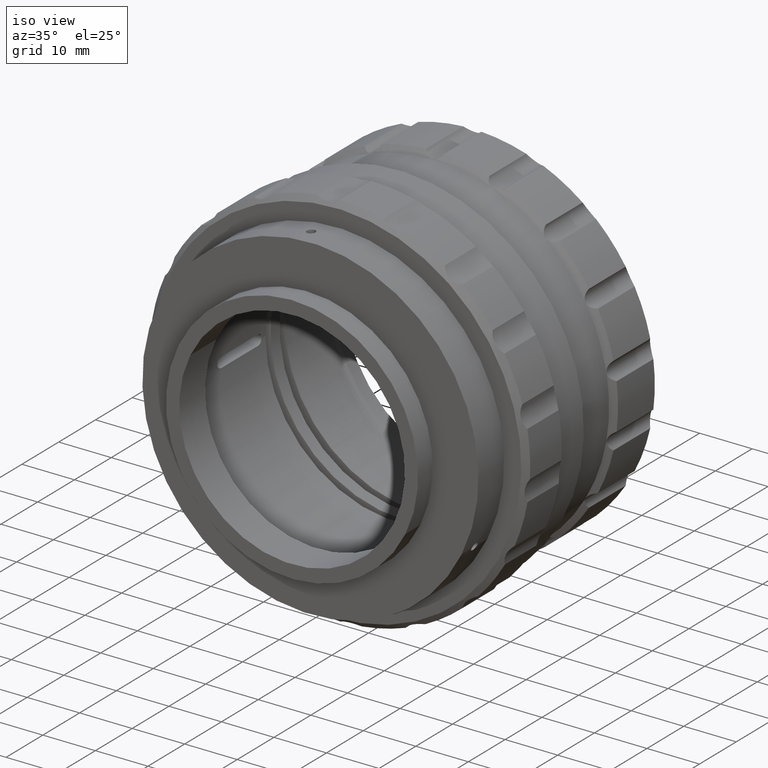
[diagram: clean part render]
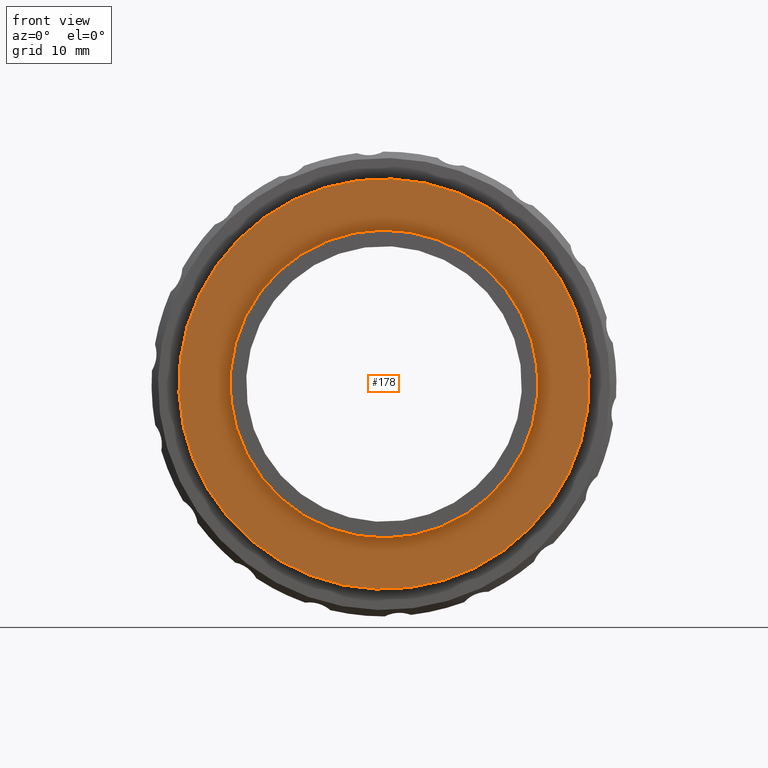
[diagram: tour spotlight — one face highlighted and labeled with its STEP entity id]
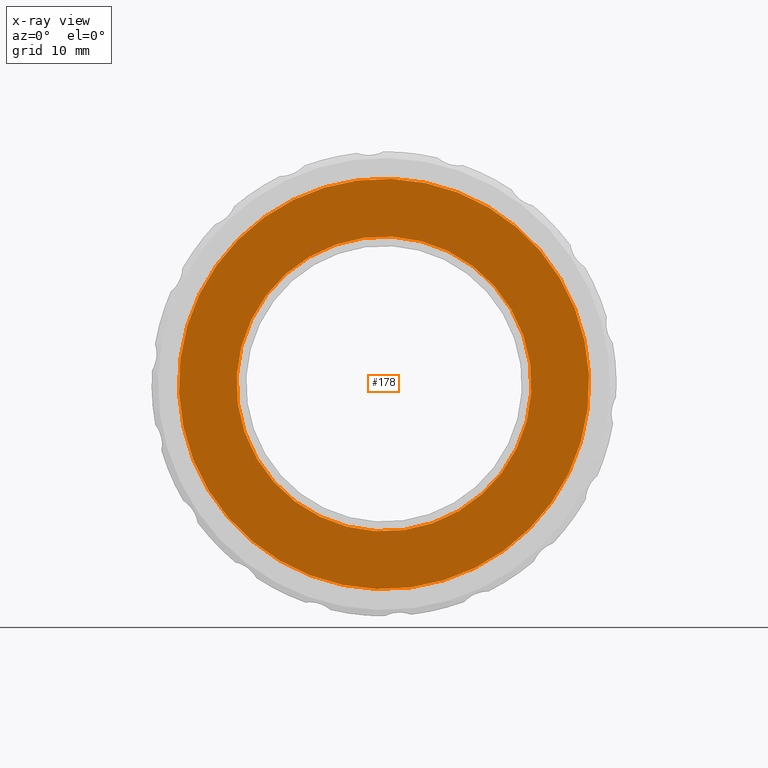
[diagram: x-ray of the same camera — body ghosted, this tour face saturated]
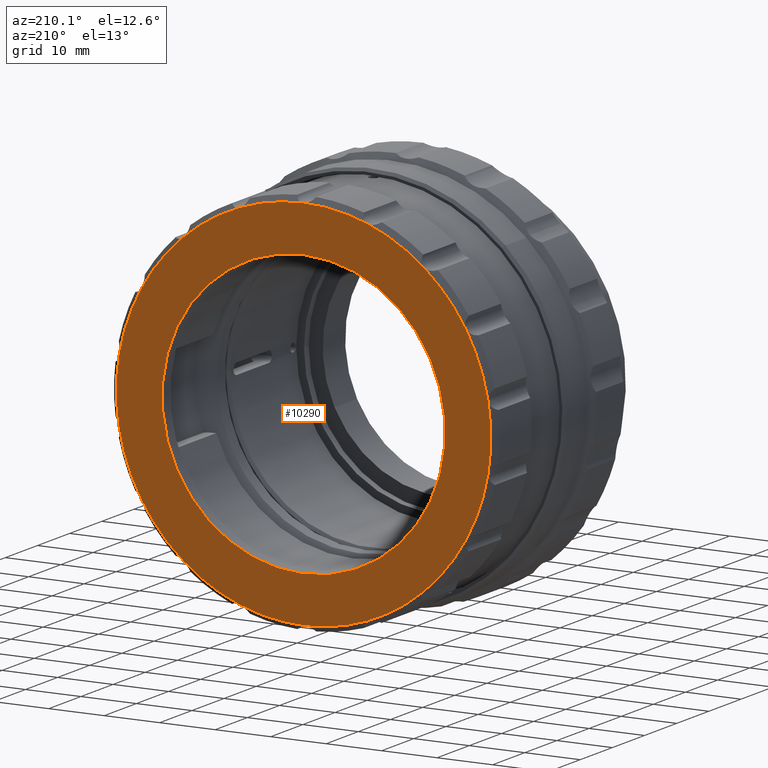
[diagram: tour spotlight — one face highlighted and labeled with its STEP entity id]
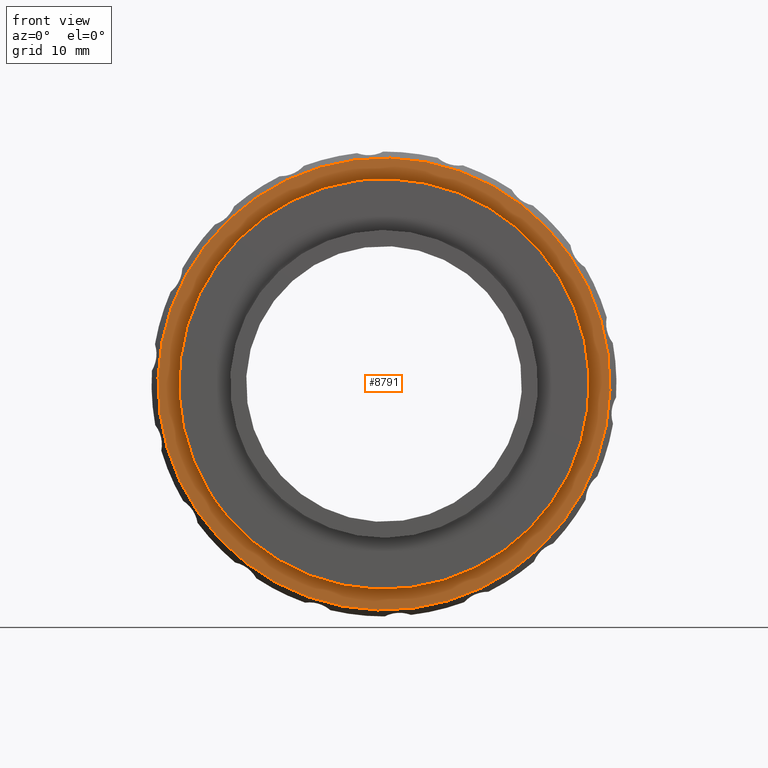
[diagram: tour spotlight — one face highlighted and labeled with its STEP entity id]
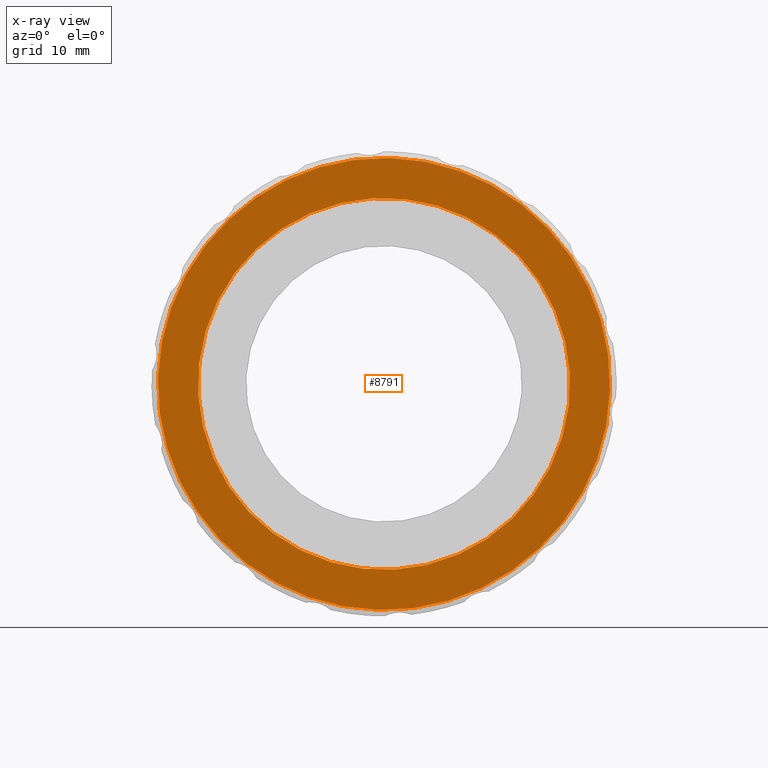
[diagram: x-ray of the same camera — body ghosted, this tour face saturated]
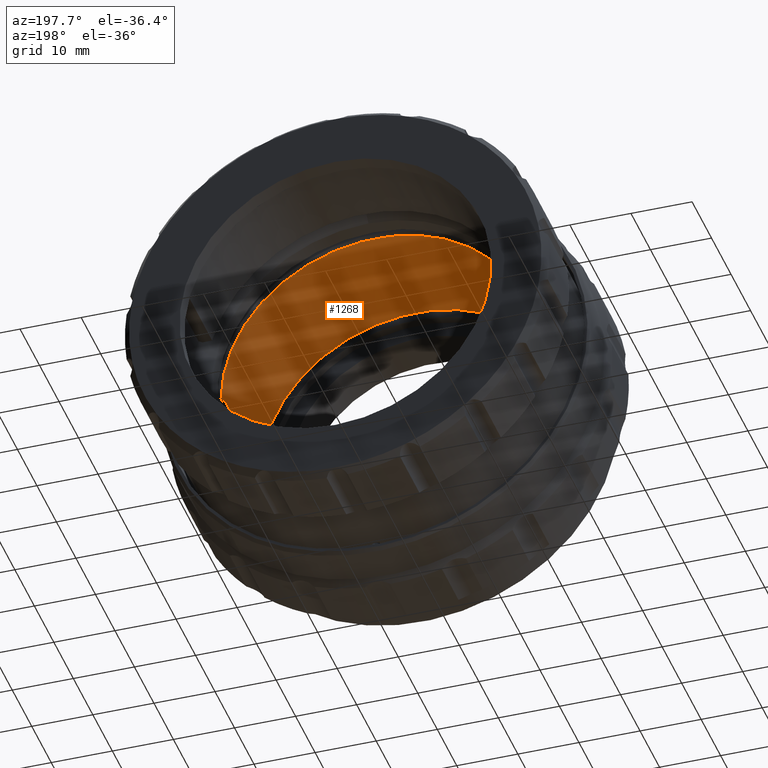
[diagram: tour spotlight — one face highlighted and labeled with its STEP entity id]
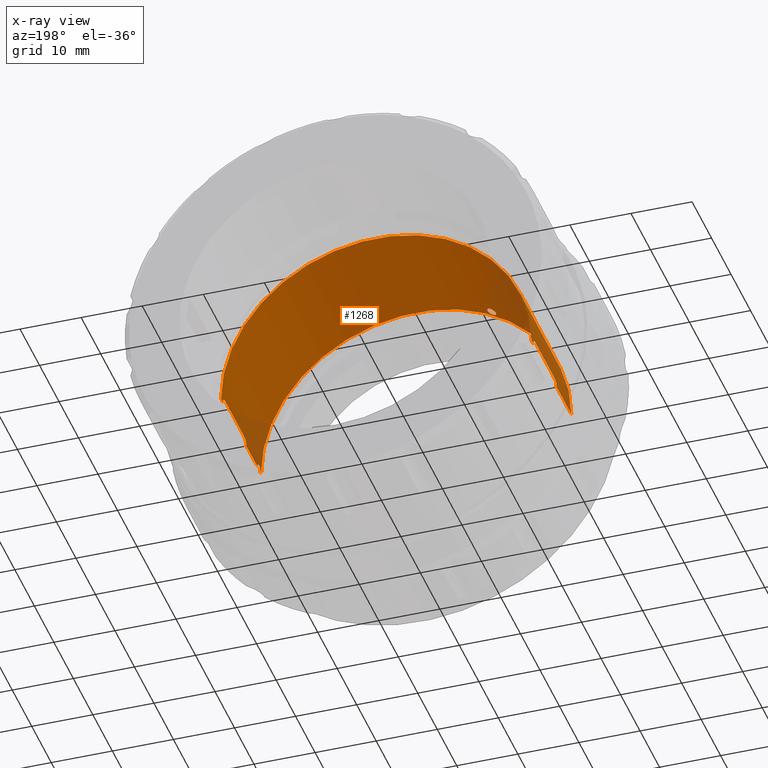
[diagram: x-ray of the same camera — body ghosted, this tour face saturated]
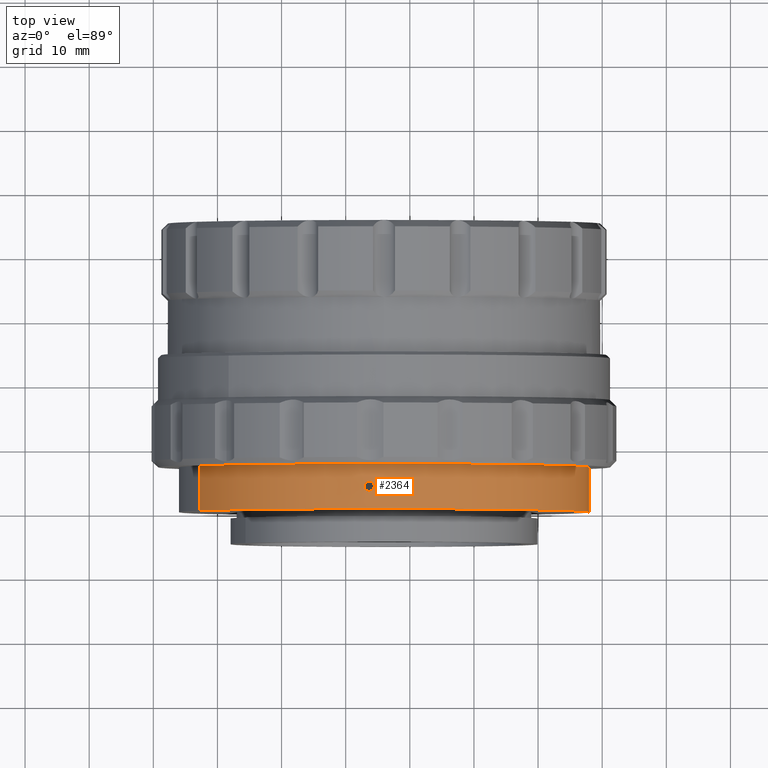
[diagram: tour spotlight — one face highlighted and labeled with its STEP entity id]
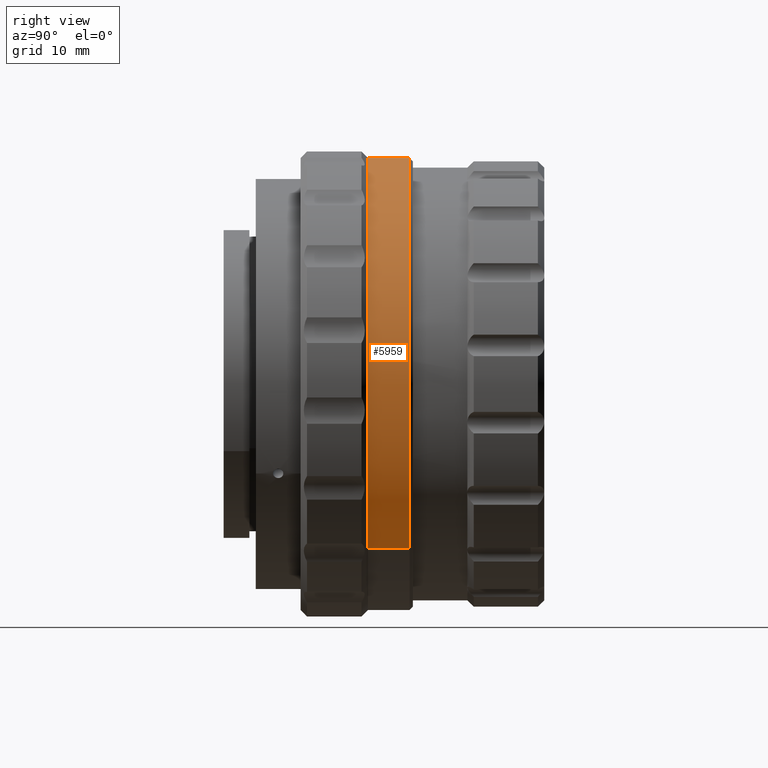
[diagram: tour spotlight — one face highlighted and labeled with its STEP entity id]
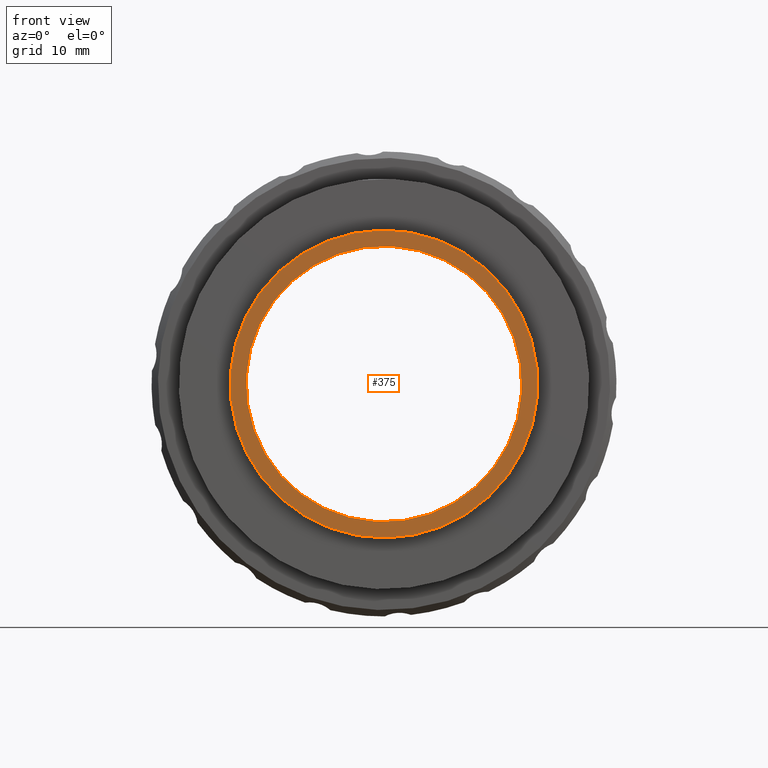
[diagram: tour spotlight — one face highlighted and labeled with its STEP entity id]
A machine part: a face-by-face anatomy tour. The part has 274 B-rep faces; the first image is the clean iso view, then the 7 largest visible faces are spotlighted one at a time (largest first), each with its STEP entity span.

Face 1 — front view, entity #178. An x-ray twin of the same camera follows (body ghosted, this face saturated) — the face is partly hidden behind the body. In plain terms, the highlighted planar face has unit normal (0, 1, 0).
Definition (entity closure, byte-faithful):
#178 = ADVANCED_FACE ( 'NONE', ( #8251, #7597 ), #917, .F. ) ;
#263 = CARTESIAN_POINT ( 'NONE',  ( 19.92262389262244682, -30.04875568700542132, 73.70212153976606828 ) ) ;
#562 = DIRECTION ( 'NONE',  ( -0.8999629717010937391, 0.000000000000000000, 0.4359663399471757628 ) ) ;
#917 = PLANE ( 'NONE',  #6884 ) ;
#1385 = CIRCLE ( 'NONE', #5828, 32.00000000000000000 ) ;
#1897 = VERTEX_POINT ( 'NONE', #3290 ) ;
#2072 = CIRCLE ( 'NONE', #9401, 23.00000000000000000 ) ;
#2330 = EDGE_CURVE ( 'NONE', #5208, #7920, #9984, .T. ) ;
#3290 = CARTESIAN_POINT ( 'NONE',  ( 34.77051610874783449, -30.04875568700542132, 30.95238356702144245 ) ) ;
#3384 = DIRECTION ( 'NONE',  ( 0.000000000000000000, -1.000000000000000000, 0.000000000000000000 ) ) ;
#3518 = ORIENTED_EDGE ( 'NONE', *, *, #10113, .F. ) ;
#3738 = CARTESIAN_POINT ( 'NONE',  ( -14.72744733481232871, -30.04875568700542132, 54.93053226411610979 ) ) ;
#3756 = EDGE_CURVE ( 'NONE', #1897, #4937, #9504, .T. ) ;
#4132 = DIRECTION ( 'NONE',  ( 0.000000000000000000, 1.000000000000000000, 0.000000000000000000 ) ) ;
#4629 = DIRECTION ( 'NONE',  ( 0.000000000000000000, -1.000000000000000000, 0.000000000000000000 ) ) ;
#4937 = VERTEX_POINT ( 'NONE', #6937 ) ;
#5208 = VERTEX_POINT ( 'NONE', #8342 ) ;
#5422 = CARTESIAN_POINT ( 'NONE',  ( 5.971701014312827738, -30.04875568700542132, 44.90330644533106863 ) ) ;
#5458 = DIRECTION ( 'NONE',  ( -0.8999629717010937391, 0.000000000000000000, 0.4359663399471757628 ) ) ;
#5760 = AXIS2_PLACEMENT_3D ( 'NONE', #5422, #4629, #562 ) ;
#5773 = ORIENTED_EDGE ( 'NONE', *, *, #2330, .F. ) ;
#5828 = AXIS2_PLACEMENT_3D ( 'NONE', #7020, #8040, #5458 ) ;
#6273 = ORIENTED_EDGE ( 'NONE', *, *, #10015, .T. ) ;
#6884 = AXIS2_PLACEMENT_3D ( 'NONE', #263, #4132, #10056 ) ;
#6936 = DIRECTION ( 'NONE',  ( -0.8999629717010937391, 0.000000000000000000, 0.4359663399471757073 ) ) ;
#6937 = CARTESIAN_POINT ( 'NONE',  ( -22.82711408012217191, -30.04875568700542132, 58.85422932364069482 ) ) ;
#7020 = CARTESIAN_POINT ( 'NONE',  ( 5.971701014312827738, -30.04875568700542132, 44.90330644533106863 ) ) ;
#7597 = FACE_OUTER_BOUND ( 'NONE', #10276, .T. ) ;
#7599 = AXIS2_PLACEMENT_3D ( 'NONE', #8497, #8600, #6936 ) ;
#7920 = VERTEX_POINT ( 'NONE', #3738 ) ;
#8040 = DIRECTION ( 'NONE',  ( 0.000000000000000000, -1.000000000000000000, 0.000000000000000000 ) ) ;
#8251 = FACE_BOUND ( 'NONE', #8874, .T. ) ;
#8260 = DIRECTION ( 'NONE',  ( -0.8999629717010937391, 0.000000000000000000, 0.4359663399471757073 ) ) ;
#8342 = CARTESIAN_POINT ( 'NONE',  ( 26.67084936343798063, -30.04875568700542132, 34.87608062654602747 ) ) ;
#8497 = CARTESIAN_POINT ( 'NONE',  ( 5.971701014312827738, -30.04875568700542132, 44.90330644533106863 ) ) ;
#8600 = DIRECTION ( 'NONE',  ( 0.000000000000000000, -1.000000000000000000, 0.000000000000000000 ) ) ;
#8874 = EDGE_LOOP ( 'NONE', ( #3518, #5773 ) ) ;
#9050 = CARTESIAN_POINT ( 'NONE',  ( 5.971701014312827738, -30.04875568700542132, 44.90330644533106863 ) ) ;
#9401 = AXIS2_PLACEMENT_3D ( 'NONE', #9050, #3384, #8260 ) ;
#9504 = CIRCLE ( 'NONE', #5760, 32.00000000000000000 ) ;
#9984 = CIRCLE ( 'NONE', #7599, 23.00000000000000000 ) ;
#10015 = EDGE_CURVE ( 'NONE', #4937, #1897, #1385, .T. ) ;
#10056 = DIRECTION ( 'NONE',  ( 0.8999629717010937391, 0.000000000000000000, -0.4359663399471757073 ) ) ;
#10113 = EDGE_CURVE ( 'NONE', #7920, #5208, #2072, .T. ) ;
#10276 = EDGE_LOOP ( 'NONE', ( #6273, #10353 ) ) ;
#10353 = ORIENTED_EDGE ( 'NONE', *, *, #3756, .T. ) ;

Face 2 — auxiliary view, entity #10290. In plain terms, the highlighted planar face has unit normal (0, -1, -0).
Definition (entity closure, byte-faithful):
#63 = DIRECTION ( 'NONE',  ( -0.000000000000000000, -1.000000000000000000, -0.000000000000000000 ) ) ;
#328 = DIRECTION ( 'NONE',  ( 0.000000000000000000, -1.000000000000000000, -0.000000000000000000 ) ) ;
#365 = EDGE_CURVE ( 'NONE', #4346, #8027, #7604, .T. ) ;
#564 = EDGE_CURVE ( 'NONE', #3139, #8678, #9818, .T. ) ;
#575 = DIRECTION ( 'NONE',  ( -0.000000000000000000, -1.000000000000000000, -0.000000000000000000 ) ) ;
#741 = CARTESIAN_POINT ( 'NONE',  ( -15.72238081260774223, 14.95124431299455914, 70.75730640059668985 ) ) ;
#790 = AXIS2_PLACEMENT_3D ( 'NONE', #7385, #63, #7490 ) ;
#825 = AXIS2_PLACEMENT_3D ( 'NONE', #10112, #2785, #4289 ) ;
#864 = AXIS2_PLACEMENT_3D ( 'NONE', #7265, #3197, #4053 ) ;
#871 = AXIS2_PLACEMENT_3D ( 'NONE', #1990, #4537, #4490 ) ;
#873 = CARTESIAN_POINT ( 'NONE',  ( 5.971701014312827738, 14.95124431299455914, 44.90330644533106863 ) ) ;
#992 = AXIS2_PLACEMENT_3D ( 'NONE', #3682, #6040, #8503 ) ;
#1008 = EDGE_CURVE ( 'NONE', #9351, #1430, #7010, .T. ) ;
#1097 = DIRECTION ( 'NONE',  ( -0.000000000000000000, -1.000000000000000000, -0.000000000000000000 ) ) ;
#1126 = AXIS2_PLACEMENT_3D ( 'NONE', #4039, #9809, #7409 ) ;
#1133 = ORIENTED_EDGE ( 'NONE', *, *, #10050, .F. ) ;
#1408 = EDGE_CURVE ( 'NONE', #3166, #7037, #2039, .T. ) ;
#1417 = DIRECTION ( 'NONE',  ( 0.000000000000000000, 0.000000000000000000, -1.000000000000000000 ) ) ;
#1430 = VERTEX_POINT ( 'NONE', #6390 ) ;
#1454 = CARTESIAN_POINT ( 'NONE',  ( -23.25665636341201647, 14.95124431299455914, 28.02830644533113613 ) ) ;
#1510 = ORIENTED_EDGE ( 'NONE', *, *, #9786, .F. ) ;
#1531 = ORIENTED_EDGE ( 'NONE', *, *, #6977, .F. ) ;
#1572 = AXIS2_PLACEMENT_3D ( 'NONE', #7605, #6696, #3536 ) ;
#1745 = CIRCLE ( 'NONE', #9238, 33.75000000000000000 ) ;
#1840 = FACE_OUTER_BOUND ( 'NONE', #4905, .T. ) ;
#1856 = EDGE_LOOP ( 'NONE', ( #7203, #6247 ) ) ;
#1883 = ORIENTED_EDGE ( 'NONE', *, *, #10275, .F. ) ;
#1983 = DIRECTION ( 'NONE',  ( 0.000000000000000000, 0.000000000000000000, -1.000000000000000000 ) ) ;
#1990 = CARTESIAN_POINT ( 'NONE',  ( 5.971701014312827738, 14.95124431299455914, 44.90330644533106863 ) ) ;
#2003 = CARTESIAN_POINT ( 'NONE',  ( 5.971701014312827738, 14.95124431299455914, 44.90330644533106863 ) ) ;
#2039 = CIRCLE ( 'NONE', #7844, 33.75000000000000000 ) ;
#2044 = EDGE_CURVE ( 'NONE', #5818, #6032, #4208, .T. ) ;
#2108 = VERTEX_POINT ( 'NONE', #5609 ) ;
#2162 = ORIENTED_EDGE ( 'NONE', *, *, #6176, .F. ) ;
#2171 = EDGE_CURVE ( 'NONE', #6229, #7077, #10524, .T. ) ;
#2194 = DIRECTION ( 'NONE',  ( -0.000000000000000000, -1.000000000000000000, -0.000000000000000000 ) ) ;
#2278 = CARTESIAN_POINT ( 'NONE',  ( 5.971701014312827738, 14.95124431299455914, 44.90330644533106863 ) ) ;
#2310 = DIRECTION ( 'NONE',  ( -0.000000000000000000, -1.000000000000000000, -0.000000000000000000 ) ) ;
#2381 = CARTESIAN_POINT ( 'NONE',  ( 5.971701014312827738, 14.95124431299455914, 44.90330644533106863 ) ) ;
#2431 = ORIENTED_EDGE ( 'NONE', *, *, #6907, .F. ) ;
#2538 = VERTEX_POINT ( 'NONE', #6451 ) ;
#2543 = DIRECTION ( 'NONE',  ( -0.000000000000000000, -1.000000000000000000, -0.000000000000000000 ) ) ;
#2636 = DIRECTION ( 'NONE',  ( 0.000000000000000000, 0.000000000000000000, -1.000000000000000000 ) ) ;
#2757 = ORIENTED_EDGE ( 'NONE', *, *, #1408, .F. ) ;
#2785 = DIRECTION ( 'NONE',  ( -0.000000000000000000, -1.000000000000000000, -0.000000000000000000 ) ) ;
#2826 = CARTESIAN_POINT ( 'NONE',  ( -15.72238081260791631, 14.95124431299455914, 19.04930649006558241 ) ) ;
#2884 = CIRCLE ( 'NONE', #6466, 33.75000000000000000 ) ;
#2894 = EDGE_CURVE ( 'NONE', #1430, #6076, #5417, .T. ) ;
#2965 = CARTESIAN_POINT ( 'NONE',  ( 5.971701014312827738, 14.95124431299455914, 19.40330644533106863 ) ) ;
#2990 = AXIS2_PLACEMENT_3D ( 'NONE', #873, #9206, #2636 ) ;
#2991 = CARTESIAN_POINT ( 'NONE',  ( 5.971701014312827738, 14.95124431299455914, 11.15330644533106508 ) ) ;
#3076 = DIRECTION ( 'NONE',  ( 0.000000000000000000, 0.000000000000000000, -1.000000000000000000 ) ) ;
#3139 = VERTEX_POINT ( 'NONE', #9218 ) ;
#3147 = EDGE_CURVE ( 'NONE', #2108, #5818, #8365, .T. ) ;
#3166 = VERTEX_POINT ( 'NONE', #3602 ) ;
#3196 = CARTESIAN_POINT ( 'NONE',  ( 5.971701014312827738, 14.95124431299455914, 44.90330644533106863 ) ) ;
#3197 = DIRECTION ( 'NONE',  ( -0.000000000000000000, -1.000000000000000000, -0.000000000000000000 ) ) ;
#3236 = CARTESIAN_POINT ( 'NONE',  ( 5.971701014312827738, 14.95124431299455914, 44.90330644533106863 ) ) ;
#3404 = ORIENTED_EDGE ( 'NONE', *, *, #7759, .F. ) ;
#3423 = CARTESIAN_POINT ( 'NONE',  ( 39.20896267847491856, 14.95124431299455914, 50.76393244158964535 ) ) ;
#3447 = AXIS2_PLACEMENT_3D ( 'NONE', #3236, #2543, #4037 ) ;
#3536 = DIRECTION ( 'NONE',  ( 0.000000000000000000, 0.000000000000000000, -1.000000000000000000 ) ) ;
#3602 = CARTESIAN_POINT ( 'NONE',  ( 27.66578284123322362, 14.95124431299455914, 19.04930649006528753 ) ) ;
#3608 = ORIENTED_EDGE ( 'NONE', *, *, #1008, .F. ) ;
#3682 = CARTESIAN_POINT ( 'NONE',  ( 5.971701014312827738, 14.95124431299455914, 44.90330644533106863 ) ) ;
#3817 = CARTESIAN_POINT ( 'NONE',  ( 5.971701014312827738, 14.95124431299455914, 44.90330644533106863 ) ) ;
#3820 = AXIS2_PLACEMENT_3D ( 'NONE', #3196, #575, #9720 ) ;
#4037 = DIRECTION ( 'NONE',  ( 0.000000000000000000, 0.000000000000000000, -1.000000000000000000 ) ) ;
#4039 = CARTESIAN_POINT ( 'NONE',  ( 5.971701014312827738, 14.95124431299455914, 44.90330644533106863 ) ) ;
#4053 = DIRECTION ( 'NONE',  ( 0.000000000000000000, 0.000000000000000000, -1.000000000000000000 ) ) ;
#4081 = VERTEX_POINT ( 'NONE', #7298 ) ;
#4166 = EDGE_CURVE ( 'NONE', #8593, #5981, #8977, .T. ) ;
#4208 = CIRCLE ( 'NONE', #8991, 33.75000000000000000 ) ;
#4252 = CIRCLE ( 'NONE', #8003, 33.75000000000000000 ) ;
#4289 = DIRECTION ( 'NONE',  ( 0.000000000000000000, 0.000000000000000000, -1.000000000000000000 ) ) ;
#4302 = AXIS2_PLACEMENT_3D ( 'NONE', #5146, #328, #8463 ) ;
#4316 = CARTESIAN_POINT ( 'NONE',  ( 27.66578284123374587, 14.95124431299455914, 70.75730640059639143 ) ) ;
#4346 = VERTEX_POINT ( 'NONE', #7765 ) ;
#4357 = ORIENTED_EDGE ( 'NONE', *, *, #365, .F. ) ;
#4372 = CARTESIAN_POINT ( 'NONE',  ( 5.971701014312827738, 14.95124431299455914, 44.90330644533106863 ) ) ;
#4435 = CARTESIAN_POINT ( 'NONE',  ( 35.20005839203743392, 14.95124431299455914, 28.02830644533072757 ) ) ;
#4490 = DIRECTION ( 'NONE',  ( 0.000000000000000000, 0.000000000000000000, -1.000000000000000000 ) ) ;
#4492 = ORIENTED_EDGE ( 'NONE', *, *, #2044, .F. ) ;
#4537 = DIRECTION ( 'NONE',  ( -0.000000000000000000, -1.000000000000000000, -0.000000000000000000 ) ) ;
#4593 = EDGE_CURVE ( 'NONE', #8678, #3139, #9636, .T. ) ;
#4669 = DIRECTION ( 'NONE',  ( 0.000000000000000000, 0.000000000000000000, -1.000000000000000000 ) ) ;
#4677 = ORIENTED_EDGE ( 'NONE', *, *, #2171, .F. ) ;
#4872 = ORIENTED_EDGE ( 'NONE', *, *, #2894, .F. ) ;
#4905 = EDGE_LOOP ( 'NONE', ( #7737, #4357, #2162, #4492, #7632, #1133, #4677, #1883, #4872, #3608, #1510, #9947, #1531, #2431, #3404, #6236, #2757, #7083 ) ) ;
#4925 = CIRCLE ( 'NONE', #992, 33.75000000000000000 ) ;
#5017 = EDGE_CURVE ( 'NONE', #7037, #4081, #6846, .T. ) ;
#5146 = CARTESIAN_POINT ( 'NONE',  ( -27.77829898568717581, 14.95124431299455914, 44.90330644533106863 ) ) ;
#5417 = CIRCLE ( 'NONE', #8171, 33.75000000000000000 ) ;
#5609 = CARTESIAN_POINT ( 'NONE',  ( -27.26556064984921335, 14.95124431299455914, 39.04268044907227164 ) ) ;
#5729 = CARTESIAN_POINT ( 'NONE',  ( 5.971701014312827738, 14.95124431299455914, 44.90330644533106863 ) ) ;
#5818 = VERTEX_POINT ( 'NONE', #1454 ) ;
#5919 = CARTESIAN_POINT ( 'NONE',  ( -23.25665636341190634, 14.95124431299455914, 61.77830644533121074 ) ) ;
#5981 = VERTEX_POINT ( 'NONE', #9448 ) ;
#6032 = VERTEX_POINT ( 'NONE', #2826 ) ;
#6040 = DIRECTION ( 'NONE',  ( -0.000000000000000000, -1.000000000000000000, -0.000000000000000000 ) ) ;
#6076 = VERTEX_POINT ( 'NONE', #741 ) ;
#6176 = EDGE_CURVE ( 'NONE', #6032, #4346, #10252, .T. ) ;
#6195 = CARTESIAN_POINT ( 'NONE',  ( 5.971701014312827738, 14.95124431299455914, 44.90330644533106863 ) ) ;
#6229 = VERTEX_POINT ( 'NONE', #5919 ) ;
#6236 = ORIENTED_EDGE ( 'NONE', *, *, #5017, .F. ) ;
#6247 = ORIENTED_EDGE ( 'NONE', *, *, #564, .T. ) ;
#6390 = CARTESIAN_POINT ( 'NONE',  ( -5.571478822928303209, 14.95124431299455914, 76.61793239685555079 ) ) ;
#6451 = CARTESIAN_POINT ( 'NONE',  ( 17.51488085155375174, 14.95124431299455914, 13.18868049380651009 ) ) ;
#6466 = AXIS2_PLACEMENT_3D ( 'NONE', #5729, #6693, #7602 ) ;
#6513 = CIRCLE ( 'NONE', #1572, 33.75000000000000000 ) ;
#6632 = CIRCLE ( 'NONE', #825, 33.75000000000000000 ) ;
#6693 = DIRECTION ( 'NONE',  ( -0.000000000000000000, -1.000000000000000000, -0.000000000000000000 ) ) ;
#6696 = DIRECTION ( 'NONE',  ( -0.000000000000000000, -1.000000000000000000, -0.000000000000000000 ) ) ;
#6785 = EDGE_CURVE ( 'NONE', #2538, #3166, #4252, .T. ) ;
#6824 = VERTEX_POINT ( 'NONE', #9251 ) ;
#6846 = CIRCLE ( 'NONE', #7360, 33.75000000000000000 ) ;
#6907 = EDGE_CURVE ( 'NONE', #7221, #6824, #6632, .T. ) ;
#6977 = EDGE_CURVE ( 'NONE', #6824, #8593, #4925, .T. ) ;
#7010 = CIRCLE ( 'NONE', #871, 33.75000000000000000 ) ;
#7037 = VERTEX_POINT ( 'NONE', #4435 ) ;
#7074 = DIRECTION ( 'NONE',  ( -0.000000000000000000, -1.000000000000000000, -0.000000000000000000 ) ) ;
#7077 = VERTEX_POINT ( 'NONE', #7748 ) ;
#7083 = ORIENTED_EDGE ( 'NONE', *, *, #6785, .F. ) ;
#7181 = CARTESIAN_POINT ( 'NONE',  ( 5.971701014312827738, 14.95124431299455914, 44.90330644533106863 ) ) ;
#7195 = CIRCLE ( 'NONE', #8728, 33.75000000000000000 ) ;
#7203 = ORIENTED_EDGE ( 'NONE', *, *, #4593, .T. ) ;
#7221 = VERTEX_POINT ( 'NONE', #3423 ) ;
#7265 = CARTESIAN_POINT ( 'NONE',  ( 5.971701014312827738, 14.95124431299455914, 44.90330644533106863 ) ) ;
#7298 = CARTESIAN_POINT ( 'NONE',  ( 39.20896267847479066, 14.95124431299455914, 39.04268044907182400 ) ) ;
#7360 = AXIS2_PLACEMENT_3D ( 'NONE', #9289, #10203, #1983 ) ;
#7385 = CARTESIAN_POINT ( 'NONE',  ( 5.971701014312827738, 14.95124431299455914, 44.90330644533106863 ) ) ;
#7409 = DIRECTION ( 'NONE',  ( 0.000000000000000000, 0.000000000000000000, -1.000000000000000000 ) ) ;
#7457 = DIRECTION ( 'NONE',  ( -0.000000000000000000, -1.000000000000000000, -0.000000000000000000 ) ) ;
#7490 = DIRECTION ( 'NONE',  ( 0.000000000000000000, 0.000000000000000000, -1.000000000000000000 ) ) ;
#7586 = AXIS2_PLACEMENT_3D ( 'NONE', #4372, #9279, #4669 ) ;
#7602 = DIRECTION ( 'NONE',  ( 0.000000000000000000, 0.000000000000000000, -1.000000000000000000 ) ) ;
#7604 = CIRCLE ( 'NONE', #3820, 33.75000000000000000 ) ;
#7605 = CARTESIAN_POINT ( 'NONE',  ( 5.971701014312827738, 14.95124431299455914, 44.90330644533106863 ) ) ;
#7632 = ORIENTED_EDGE ( 'NONE', *, *, #3147, .F. ) ;
#7705 = CIRCLE ( 'NONE', #3447, 33.75000000000000000 ) ;
#7737 = ORIENTED_EDGE ( 'NONE', *, *, #9763, .F. ) ;
#7748 = CARTESIAN_POINT ( 'NONE',  ( -27.26556064984917072, 14.95124431299455914, 50.76393244159008589 ) ) ;
#7759 = EDGE_CURVE ( 'NONE', #4081, #7221, #2884, .T. ) ;
#7765 = CARTESIAN_POINT ( 'NONE',  ( -5.571478822928514596, 14.95124431299455914, 13.18868049380666285 ) ) ;
#7824 = DIRECTION ( 'NONE',  ( 0.000000000000000000, 0.000000000000000000, -1.000000000000000000 ) ) ;
#7844 = AXIS2_PLACEMENT_3D ( 'NONE', #8916, #8808, #7903 ) ;
#7903 = DIRECTION ( 'NONE',  ( 0.000000000000000000, 0.000000000000000000, -1.000000000000000000 ) ) ;
#7955 = CARTESIAN_POINT ( 'NONE',  ( 5.971701014312827738, 14.95124431299455914, 78.65330644533106863 ) ) ;
#8003 = AXIS2_PLACEMENT_3D ( 'NONE', #3817, #7074, #1417 ) ;
#8027 = VERTEX_POINT ( 'NONE', #2991 ) ;
#8171 = AXIS2_PLACEMENT_3D ( 'NONE', #2278, #8852, #3076 ) ;
#8365 = CIRCLE ( 'NONE', #9880, 33.75000000000000000 ) ;
#8415 = FACE_BOUND ( 'NONE', #1856, .T. ) ;
#8463 = DIRECTION ( 'NONE',  ( 0.000000000000000000, 0.000000000000000000, -1.000000000000000000 ) ) ;
#8503 = DIRECTION ( 'NONE',  ( 0.000000000000000000, 0.000000000000000000, -1.000000000000000000 ) ) ;
#8593 = VERTEX_POINT ( 'NONE', #4316 ) ;
#8678 = VERTEX_POINT ( 'NONE', #2965 ) ;
#8728 = AXIS2_PLACEMENT_3D ( 'NONE', #7181, #2310, #8832 ) ;
#8808 = DIRECTION ( 'NONE',  ( -0.000000000000000000, -1.000000000000000000, -0.000000000000000000 ) ) ;
#8832 = DIRECTION ( 'NONE',  ( 0.000000000000000000, 0.000000000000000000, -1.000000000000000000 ) ) ;
#8852 = DIRECTION ( 'NONE',  ( -0.000000000000000000, -1.000000000000000000, -0.000000000000000000 ) ) ;
#8916 = CARTESIAN_POINT ( 'NONE',  ( 5.971701014312827738, 14.95124431299455914, 44.90330644533106863 ) ) ;
#8977 = CIRCLE ( 'NONE', #1126, 33.75000000000000000 ) ;
#8991 = AXIS2_PLACEMENT_3D ( 'NONE', #6195, #2194, #9455 ) ;
#9206 = DIRECTION ( 'NONE',  ( -0.000000000000000000, -1.000000000000000000, -0.000000000000000000 ) ) ;
#9218 = CARTESIAN_POINT ( 'NONE',  ( 5.971701014312831290, 14.95124431299455914, 70.40330644533108284 ) ) ;
#9238 = AXIS2_PLACEMENT_3D ( 'NONE', #2381, #7457, #9807 ) ;
#9251 = CARTESIAN_POINT ( 'NONE',  ( 35.20005839203778919, 14.95124431299455914, 61.77830644533079862 ) ) ;
#9279 = DIRECTION ( 'NONE',  ( -0.000000000000000000, -1.000000000000000000, -0.000000000000000000 ) ) ;
#9289 = CARTESIAN_POINT ( 'NONE',  ( 5.971701014312827738, 14.95124431299455914, 44.90330644533106863 ) ) ;
#9351 = VERTEX_POINT ( 'NONE', #7955 ) ;
#9448 = CARTESIAN_POINT ( 'NONE',  ( 17.51488085155438768, 14.95124431299455914, 76.61793239685538026 ) ) ;
#9455 = DIRECTION ( 'NONE',  ( 0.000000000000000000, 0.000000000000000000, -1.000000000000000000 ) ) ;
#9636 = CIRCLE ( 'NONE', #2990, 25.50000000000000000 ) ;
#9720 = DIRECTION ( 'NONE',  ( 0.000000000000000000, 0.000000000000000000, -1.000000000000000000 ) ) ;
#9763 = EDGE_CURVE ( 'NONE', #8027, #2538, #1745, .T. ) ;
#9786 = EDGE_CURVE ( 'NONE', #5981, #9351, #7705, .T. ) ;
#9807 = DIRECTION ( 'NONE',  ( 0.000000000000000000, 0.000000000000000000, -1.000000000000000000 ) ) ;
#9809 = DIRECTION ( 'NONE',  ( -0.000000000000000000, -1.000000000000000000, -0.000000000000000000 ) ) ;
#9818 = CIRCLE ( 'NONE', #7586, 25.50000000000000000 ) ;
#9880 = AXIS2_PLACEMENT_3D ( 'NONE', #2003, #1097, #7824 ) ;
#9947 = ORIENTED_EDGE ( 'NONE', *, *, #4166, .F. ) ;
#10050 = EDGE_CURVE ( 'NONE', #7077, #2108, #7195, .T. ) ;
#10063 = PLANE ( 'NONE',  #4302 ) ;
#10112 = CARTESIAN_POINT ( 'NONE',  ( 5.971701014312827738, 14.95124431299455914, 44.90330644533106863 ) ) ;
#10203 = DIRECTION ( 'NONE',  ( -0.000000000000000000, -1.000000000000000000, -0.000000000000000000 ) ) ;
#10252 = CIRCLE ( 'NONE', #864, 33.75000000000000000 ) ;
#10275 = EDGE_CURVE ( 'NONE', #6076, #6229, #6513, .T. ) ;
#10290 = ADVANCED_FACE ( 'NONE', ( #1840, #8415 ), #10063, .F. ) ;
#10524 = CIRCLE ( 'NONE', #790, 33.75000000000000000 ) ;

Face 3 — front view, entity #8791. An x-ray twin of the same camera follows (body ghosted, this face saturated) — the face is partly hidden behind the body. In plain terms, the highlighted planar face has unit normal (0, 1, 0).
Definition (entity closure, byte-faithful):
#388 = DIRECTION ( 'NONE',  ( 0.000000000000000000, -1.000000000000000000, -0.000000000000000000 ) ) ;
#448 = DIRECTION ( 'NONE',  ( 0.6871969081691012837, 0.000000000000000000, -0.7264712034229764415 ) ) ;
#727 = VERTEX_POINT ( 'NONE', #9689 ) ;
#827 = FACE_OUTER_BOUND ( 'NONE', #5954, .T. ) ;
#1891 = DIRECTION ( 'NONE',  ( 0.6871969081691012837, 0.000000000000000000, -0.7264712034229764415 ) ) ;
#3034 = ORIENTED_EDGE ( 'NONE', *, *, #6850, .F. ) ;
#3214 = AXIS2_PLACEMENT_3D ( 'NONE', #4929, #8199, #7830 ) ;
#3232 = FACE_BOUND ( 'NONE', #9424, .T. ) ;
#3732 = AXIS2_PLACEMENT_3D ( 'NONE', #5558, #7773, #448 ) ;
#4450 = CARTESIAN_POINT ( 'NONE',  ( 5.971701014312827738, -23.04875568700542132, 44.90330644533106863 ) ) ;
#4583 = ORIENTED_EDGE ( 'NONE', *, *, #8909, .T. ) ;
#4929 = CARTESIAN_POINT ( 'NONE',  ( 5.971701014312827738, -23.04875568700542132, 44.90330644533106863 ) ) ;
#5558 = CARTESIAN_POINT ( 'NONE',  ( 5.971701014312827738, -23.04875568700542132, 44.90330644533106863 ) ) ;
#5886 = DIRECTION ( 'NONE',  ( 0.000000000000000000, -1.000000000000000000, -0.000000000000000000 ) ) ;
#5945 = CIRCLE ( 'NONE', #3732, 29.00000000000000711 ) ;
#5954 = EDGE_LOOP ( 'NONE', ( #4583, #8515 ) ) ;
#6099 = DIRECTION ( 'NONE',  ( 0.6871969081691013947, 0.000000000000000000, -0.7264712034229765525 ) ) ;
#6276 = VERTEX_POINT ( 'NONE', #7377 ) ;
#6310 = CARTESIAN_POINT ( 'NONE',  ( 30.19539202727365179, -23.04875568700542132, 19.29519652467115876 ) ) ;
#6486 = DIRECTION ( 'NONE',  ( 0.000000000000000000, 1.000000000000000000, 0.000000000000000000 ) ) ;
#6762 = EDGE_CURVE ( 'NONE', #10074, #727, #7658, .T. ) ;
#6850 = EDGE_CURVE ( 'NONE', #6276, #9890, #10216, .T. ) ;
#7377 = CARTESIAN_POINT ( 'NONE',  ( -13.95700932259110871, -23.04875568700542132, 65.97097134459740175 ) ) ;
#7442 = CARTESIAN_POINT ( 'NONE',  ( 5.971701014312827738, -23.04875568700542132, 44.90330644533106863 ) ) ;
#7600 = EDGE_CURVE ( 'NONE', #9890, #6276, #5945, .T. ) ;
#7658 = CIRCLE ( 'NONE', #3214, 35.24999999999999289 ) ;
#7669 = CARTESIAN_POINT ( 'NONE',  ( 25.90041135121677129, -23.04875568700542132, 23.83564154606474617 ) ) ;
#7773 = DIRECTION ( 'NONE',  ( 0.000000000000000000, -1.000000000000000000, -0.000000000000000000 ) ) ;
#7830 = DIRECTION ( 'NONE',  ( 0.6871969081691013947, 0.000000000000000000, -0.7264712034229765525 ) ) ;
#8155 = CARTESIAN_POINT ( 'NONE',  ( 5.971701014312827738, -23.04875568700542132, 44.90330644533106863 ) ) ;
#8199 = DIRECTION ( 'NONE',  ( 0.000000000000000000, -1.000000000000000000, -0.000000000000000000 ) ) ;
#8515 = ORIENTED_EDGE ( 'NONE', *, *, #6762, .T. ) ;
#8791 = ADVANCED_FACE ( 'NONE', ( #3232, #827 ), #9856, .F. ) ;
#8909 = EDGE_CURVE ( 'NONE', #727, #10074, #9167, .T. ) ;
#9167 = CIRCLE ( 'NONE', #9501, 35.24999999999999289 ) ;
#9187 = AXIS2_PLACEMENT_3D ( 'NONE', #7442, #5886, #1891 ) ;
#9424 = EDGE_LOOP ( 'NONE', ( #9522, #3034 ) ) ;
#9501 = AXIS2_PLACEMENT_3D ( 'NONE', #4450, #388, #6099 ) ;
#9522 = ORIENTED_EDGE ( 'NONE', *, *, #7600, .F. ) ;
#9689 = CARTESIAN_POINT ( 'NONE',  ( -18.25198999864799276, -23.04875568700542132, 70.51141636599098206 ) ) ;
#9805 = DIRECTION ( 'NONE',  ( -0.6871969081691013947, 0.000000000000000000, 0.7264712034229764415 ) ) ;
#9856 = PLANE ( 'NONE',  #10365 ) ;
#9890 = VERTEX_POINT ( 'NONE', #7669 ) ;
#10074 = VERTEX_POINT ( 'NONE', #6310 ) ;
#10216 = CIRCLE ( 'NONE', #9187, 29.00000000000000711 ) ;
#10365 = AXIS2_PLACEMENT_3D ( 'NONE', #8155, #6486, #9805 ) ;

Face 4 — auxiliary view, entity #1268. An x-ray twin of the same camera follows (body ghosted, this face saturated) — the face is partly hidden behind the body. In plain terms, the highlighted cylindrical surface (partial cylindrical patch) has radius 25.4 mm, axis along (0, -1, 0).
Definition (entity closure, byte-faithful):
#22 = VERTEX_POINT ( 'NONE', #9617 ) ;
#138 = DIRECTION ( 'NONE',  ( -0.000000000000000000, 1.000000000000000000, -0.000000000000000000 ) ) ;
#260 = VERTEX_POINT ( 'NONE', #4484 ) ;
#288 = EDGE_CURVE ( 'NONE', #10077, #3516, #9927, .T. ) ;
#301 = VERTEX_POINT ( 'NONE', #1440 ) ;
#368 = ORIENTED_EDGE ( 'NONE', *, *, #435, .T. ) ;
#402 = VERTEX_POINT ( 'NONE', #7532 ) ;
#412 = AXIS2_PLACEMENT_3D ( 'NONE', #4853, #789, #4050 ) ;
#435 = EDGE_CURVE ( 'NONE', #2889, #5914, #9400, .T. ) ;
#469 = CARTESIAN_POINT ( 'NONE',  ( 31.36892177267369064, -24.83536134137735374, 45.30701826509064034 ) ) ;
#524 = CARTESIAN_POINT ( 'NONE',  ( 31.35954213095653387, -25.54875568700542132, 45.68913303946951743 ) ) ;
#546 = CARTESIAN_POINT ( 'NONE',  ( -19.41276287646800114, -18.56961479775165103, 45.81097458519450782 ) ) ;
#611 = EDGE_CURVE ( 'NONE', #6130, #10077, #4615, .T. ) ;
#627 = CARTESIAN_POINT ( 'NONE',  ( -6.157343003722403729, -25.05766397578591409, 67.22038229503017703 ) ) ;
#633 = B_SPLINE_CURVE_WITH_KNOTS ( 'NONE', 3,
 ( #5882, #2627, #9788, #5722, #4284, #1782, #4924, #1888 ),
 .UNSPECIFIED., .F., .F.,
 ( 4, 2, 2, 4 ),
 ( 0.001563734561574833945, 0.001954328219921267797, 0.002344921878267701432, 0.003126109194960568702 ),
 .UNSPECIFIED. ) ;
#670 = AXIS2_PLACEMENT_3D ( 'NONE', #1828, #1882, #5131 ) ;
#700 = CARTESIAN_POINT ( 'NONE',  ( 31.37169705601777636, -19.04875568700541777, 44.88912612894406351 ) ) ;
#789 = DIRECTION ( 'NONE',  ( 0.000000000000000000, -1.000000000000000000, 0.000000000000000000 ) ) ;
#806 = VERTEX_POINT ( 'NONE', #5730 ) ;
#960 = FACE_BOUND ( 'NONE', #7331, .T. ) ;
#1096 = CARTESIAN_POINT ( 'NONE',  ( -19.42332021428808275, -7.174658565459910875, 45.42040706774665892 ) ) ;
#1107 = EDGE_CURVE ( 'NONE', #260, #806, #4698, .T. ) ;
#1125 = CARTESIAN_POINT ( 'NONE',  ( 31.36411378988714915, -25.05667772478665967, 45.52846626924187490 ) ) ;
#1169 = CARTESIAN_POINT ( 'NONE',  ( 31.37169705601777636, -28.04875568700541777, 44.88912612894406351 ) ) ;
#1268 = ADVANCED_FACE ( 'NONE', ( #960, #4226 ), #7487, .F. ) ;
#1328 = LINE ( 'NONE', #8501, #5477 ) ;
#1439 = CARTESIAN_POINT ( 'NONE',  ( -7.265980383229360129, -25.05679106975173198, 66.58115775881164211 ) ) ;
#1440 = CARTESIAN_POINT ( 'NONE',  ( 31.35954213095653387, -25.54875568700542132, 45.68913303946951743 ) ) ;
#1517 = CARTESIAN_POINT ( 'NONE',  ( 31.37169705601777636, -26.34875568700541848, 44.88912612894407062 ) ) ;
#1782 = CARTESIAN_POINT ( 'NONE',  ( 31.35716254769303646, -7.527896576259195172, 45.78263073804284744 ) ) ;
#1791 = ORIENTED_EDGE ( 'NONE', *, *, #5957, .T. ) ;
#1823 = CARTESIAN_POINT ( 'NONE',  ( -6.093053654912778505, -25.96633716049252882, 67.25556475860139471 ) ) ;
#1828 = CARTESIAN_POINT ( 'NONE',  ( 5.971701014312827738, -28.04875568700541777, 44.90330644533106863 ) ) ;
#1854 = CARTESIAN_POINT ( 'NONE',  ( -19.41544159243329304, -7.433640515435691931, 45.71664413425271789 ) ) ;
#1882 = DIRECTION ( 'NONE',  ( 0.000000000000000000, -1.000000000000000000, 0.000000000000000000 ) ) ;
#1888 = CARTESIAN_POINT ( 'NONE',  ( 31.35256266600384834, -8.048755687005423098, 45.88913696713471069 ) ) ;
#1963 = ORIENTED_EDGE ( 'NONE', *, *, #4875, .T. ) ;
#2083 = CARTESIAN_POINT ( 'NONE',  ( 31.37077594332325603, -19.02253951912716445, 45.15127621225317966 ) ) ;
#2091 = ORIENTED_EDGE ( 'NONE', *, *, #288, .T. ) ;
#2148 = CARTESIAN_POINT ( 'NONE',  ( 31.37169705601777636, -28.04875568700541777, 44.88912612894406351 ) ) ;
#2149 = CARTESIAN_POINT ( 'NONE',  ( 31.35256266600385544, -18.04875568700541777, 45.88913696713471069 ) ) ;
#2152 = CARTESIAN_POINT ( 'NONE',  ( 31.37181501281618168, -26.34875568700542203, 45.10041212079703143 ) ) ;
#2239 = CARTESIAN_POINT ( 'NONE',  ( -6.016678283235870950, -25.54875568700427735, 67.29613480215338939 ) ) ;
#2262 = VERTEX_POINT ( 'NONE', #2573 ) ;
#2326 = CARTESIAN_POINT ( 'NONE',  ( -7.402765337502422938, -25.54875568700542132, 66.49690850251832330 ) ) ;
#2340 = CARTESIAN_POINT ( 'NONE',  ( -6.897236833682512724, -24.74884213254215837, 66.80294252809677857 ) ) ;
#2563 = CARTESIAN_POINT ( 'NONE',  ( -7.402765337502422938, -25.54875568700542132, 66.49690850251832330 ) ) ;
#2567 = EDGE_CURVE ( 'NONE', #5749, #4248, #10324, .T. ) ;
#2573 = CARTESIAN_POINT ( 'NONE',  ( -19.40804407703276979, -18.04875568700541777, 45.91747561185065507 ) ) ;
#2616 = CARTESIAN_POINT ( 'NONE',  ( -6.898583546489231999, -26.34891986698476884, 66.80217511717155787 ) ) ;
#2627 = CARTESIAN_POINT ( 'NONE',  ( 31.37176984450365680, -7.048755687005420434, 45.01950595989146819 ) ) ;
#2648 = CARTESIAN_POINT ( 'NONE',  ( -19.42708120892982038, -7.074971854883679967, 45.17963565313726093 ) ) ;
#2668 = CARTESIAN_POINT ( 'NONE',  ( -6.364799525129838820, -26.24735320092054636, 67.10646234115999675 ) ) ;
#2701 = CARTESIAN_POINT ( 'NONE',  ( -19.42068447732638248, -7.249150694322786137, 45.53202496380739461 ) ) ;
#2732 = CARTESIAN_POINT ( 'NONE',  ( 31.35361039610226541, -18.31065649331050338, 45.86309931185300570 ) ) ;
#2879 = CARTESIAN_POINT ( 'NONE',  ( 31.35256266600385544, -18.04875568700541777, 45.88913696713471069 ) ) ;
#2889 = VERTEX_POINT ( 'NONE', #2326 ) ;
#2940 = ORIENTED_EDGE ( 'NONE', *, *, #9967, .T. ) ;
#2950 = DIRECTION ( 'NONE',  ( 0.000000000000000000, -1.000000000000000000, 0.000000000000000000 ) ) ;
#3013 = DIRECTION ( 'NONE',  ( 0.000000000000000000, -1.000000000000000000, 0.000000000000000000 ) ) ;
#3059 = EDGE_CURVE ( 'NONE', #2262, #22, #9810, .T. ) ;
#3116 = ORIENTED_EDGE ( 'NONE', *, *, #4744, .F. ) ;
#3140 = ORIENTED_EDGE ( 'NONE', *, *, #9033, .T. ) ;
#3149 = DIRECTION ( 'NONE',  ( 0.000000000000000000, -1.000000000000000000, 0.000000000000000000 ) ) ;
#3255 = CARTESIAN_POINT ( 'NONE',  ( -7.385108654899178227, -25.75810104892133268, 66.50787199743570000 ) ) ;
#3269 = CARTESIAN_POINT ( 'NONE',  ( 31.37169705601777636, -26.54875568700542132, 44.88912612894406351 ) ) ;
#3282 = VECTOR ( 'NONE', #4867, 1000.000000000000000 ) ;
#3413 = EDGE_LOOP ( 'NONE', ( #3116, #4029, #1963, #8439, #2091, #8495, #1791, #5997, #3140, #7068, #7870, #2940, #9634, #8573, #7303 ) ) ;
#3503 = CARTESIAN_POINT ( 'NONE',  ( -19.40804407703276979, -8.048755687005423098, 45.91747561185064797 ) ) ;
#3516 = VERTEX_POINT ( 'NONE', #700 ) ;
#3554 = CARTESIAN_POINT ( 'NONE',  ( -19.40804407703276269, -7.916567271882335888, 45.91747561185065507 ) ) ;
#3584 = CARTESIAN_POINT ( 'NONE',  ( 31.37169705601777636, -19.04875568700541777, 44.88912612894406351 ) ) ;
#3617 = CARTESIAN_POINT ( 'NONE',  ( -19.42829502739212089, -7.048755687005421322, 44.91748676171806665 ) ) ;
#3680 = CARTESIAN_POINT ( 'NONE',  ( 31.37169705601790781, -24.74875568700115736, 44.88912612894360876 ) ) ;
#3797 = VERTEX_POINT ( 'NONE', #3617 ) ;
#3810 = CARTESIAN_POINT ( 'NONE',  ( 31.36410637696472747, -26.04045016205085261, 45.52876315896305925 ) ) ;
#3891 = CARTESIAN_POINT ( 'NONE',  ( -7.316706040268321054, -25.14565762312401276, 66.55001170683945588 ) ) ;
#4002 = CARTESIAN_POINT ( 'NONE',  ( -6.625836250467251887, -24.74871256685991838, 66.95943848011363286 ) ) ;
#4029 = ORIENTED_EDGE ( 'NONE', *, *, #1107, .T. ) ;
#4050 = DIRECTION ( 'NONE',  ( -0.9999998441616122502, 0.000000000000000000, 0.0005582801727163589842 ) ) ;
#4065 = CARTESIAN_POINT ( 'NONE',  ( 5.971701014312827738, -6.048755687005420434, 44.90330644533106863 ) ) ;
#4098 = CARTESIAN_POINT ( 'NONE',  ( -19.40804407703276979, -28.04875568700541777, 45.91747561185064797 ) ) ;
#4201 = CARTESIAN_POINT ( 'NONE',  ( -19.41283272787569203, -7.544590911189745341, 45.79098482384965507 ) ) ;
#4226 = FACE_OUTER_BOUND ( 'NONE', #3413, .T. ) ;
#4236 = EDGE_CURVE ( 'NONE', #22, #3797, #7359, .T. ) ;
#4248 = VERTEX_POINT ( 'NONE', #6812 ) ;
#4284 = CARTESIAN_POINT ( 'NONE',  ( 31.36480083214652481, -7.248121529122257378, 45.50263837352606799 ) ) ;
#4410 = EDGE_CURVE ( 'NONE', #301, #10051, #10157, .T. ) ;
#4434 = CARTESIAN_POINT ( 'NONE',  ( 31.37181369142874487, -24.74875568700523232, 45.09804523172945778 ) ) ;
#4484 = CARTESIAN_POINT ( 'NONE',  ( 31.37169705601777636, -6.048755687005420434, 44.88912612894406351 ) ) ;
#4615 = LINE ( 'NONE', #7885, #5209 ) ;
#4698 = LINE ( 'NONE', #7270, #10234 ) ;
#4744 = EDGE_CURVE ( 'NONE', #260, #10425, #8965, .T. ) ;
#4853 = CARTESIAN_POINT ( 'NONE',  ( 5.971701014312827738, -26.54875568700542132, 44.90330644533106863 ) ) ;
#4867 = DIRECTION ( 'NONE',  ( 0.000000000000000000, -1.000000000000000000, 0.000000000000000000 ) ) ;
#4874 = AXIS2_PLACEMENT_3D ( 'NONE', #4065, #7330, #5502 ) ;
#4875 = EDGE_CURVE ( 'NONE', #806, #6130, #633, .T. ) ;
#4911 = CARTESIAN_POINT ( 'NONE',  ( -7.402765337502422049, -25.65427607241714725, 66.49690850251833751 ) ) ;
#4924 = CARTESIAN_POINT ( 'NONE',  ( 31.35256266600386255, -7.784608890268819081, 45.88913696713471069 ) ) ;
#5131 = DIRECTION ( 'NONE',  ( -0.9999998441616122502, 0.000000000000000000, 0.0005582801727163589842 ) ) ;
#5139 = EDGE_CURVE ( 'NONE', #5914, #2889, #8308, .T. ) ;
#5209 = VECTOR ( 'NONE', #3013, 1000.000000000000000 ) ;
#5292 = B_SPLINE_CURVE_WITH_KNOTS ( 'NONE', 3,
 ( #5561, #9626, #8621, #7067, #7879, #546, #5351, #10443 ),
 .UNSPECIFIED., .F., .F.,
 ( 4, 2, 2, 4 ),
 ( 0.001563734561574834595, 0.001954328219921270399, 0.002344921878267706636, 0.003126109194960563931 ),
 .UNSPECIFIED. ) ;
#5351 = CARTESIAN_POINT ( 'NONE',  ( -19.40804407703277334, -18.31290248374202889, 45.91747561185065507 ) ) ;
#5384 = CARTESIAN_POINT ( 'NONE',  ( 31.35954213095652676, -25.44317568336597546, 45.68913303946952453 ) ) ;
#5477 = VECTOR ( 'NONE', #10156, 1000.000000000000000 ) ;
#5502 = DIRECTION ( 'NONE',  ( -0.9999998441616122502, 0.000000000000000000, 0.0005582801727163589842 ) ) ;
#5561 = CARTESIAN_POINT ( 'NONE',  ( -19.42829502739212089, -19.04875568700541777, 44.91748676171806665 ) ) ;
#5611 = LINE ( 'NONE', #7223, #3282 ) ;
#5656 = CARTESIAN_POINT ( 'NONE',  ( -7.385046279005014647, -25.33924057936172147, 66.50791040997951598 ) ) ;
#5722 = CARTESIAN_POINT ( 'NONE',  ( 31.36727797492013536, -7.174821680447125871, 45.39250519683528040 ) ) ;
#5730 = CARTESIAN_POINT ( 'NONE',  ( 31.37169705601777636, -7.048755687005421322, 44.88912612894406351 ) ) ;
#5749 = VERTEX_POINT ( 'NONE', #3269 ) ;
#5871 = CARTESIAN_POINT ( 'NONE',  ( -6.533735644517499885, -26.32778440684947796, 67.01175350219455140 ) ) ;
#5882 = CARTESIAN_POINT ( 'NONE',  ( 31.37169705601777636, -7.048755687005421322, 44.88912612894406351 ) ) ;
#5902 = CARTESIAN_POINT ( 'NONE',  ( -19.42829502739212089, -7.048755687005421322, 44.91748676171806665 ) ) ;
#5914 = VERTEX_POINT ( 'NONE', #6735 ) ;
#5957 = EDGE_CURVE ( 'NONE', #6178, #301, #9193, .T. ) ;
#5997 = ORIENTED_EDGE ( 'NONE', *, *, #4410, .T. ) ;
#6003 = EDGE_CURVE ( 'NONE', #10425, #3797, #1328, .T. ) ;
#6009 = CARTESIAN_POINT ( 'NONE',  ( -19.40912087908692030, -7.786854880700339265, 45.89143914265331148 ) ) ;
#6055 = CARTESIAN_POINT ( 'NONE',  ( 31.35954213095654097, -25.65422429343599475, 45.68913303946953164 ) ) ;
#6130 = VERTEX_POINT ( 'NONE', #8710 ) ;
#6135 = CARTESIAN_POINT ( 'NONE',  ( 31.35721007928581727, -18.55292046282109197, 45.76264091116536292 ) ) ;
#6178 = VERTEX_POINT ( 'NONE', #8923 ) ;
#6208 = CARTESIAN_POINT ( 'NONE',  ( 31.36020774230571817, -25.75799578537286294, 45.66838182882143116 ) ) ;
#6260 = CARTESIAN_POINT ( 'NONE',  ( 31.35954213095653387, -25.54875568700542132, 45.68913303946951743 ) ) ;
#6396 = CARTESIAN_POINT ( 'NONE',  ( -6.105665777754050616, -25.14580890682779568, 67.24830189388362101 ) ) ;
#6452 = CARTESIAN_POINT ( 'NONE',  ( -7.402765337502421161, -25.44320355062702887, 66.49690850251832330 ) ) ;
#6672 = CARTESIAN_POINT ( 'NONE',  ( -7.266031093961114351, -26.04066163243140508, 66.58112700197499123 ) ) ;
#6674 = ORIENTED_EDGE ( 'NONE', *, *, #5139, .T. ) ;
#6735 = CARTESIAN_POINT ( 'NONE',  ( -6.016678283235870950, -25.54875568700427735, 67.29613480215338939 ) ) ;
#6812 = CARTESIAN_POINT ( 'NONE',  ( -19.42829502739212089, -26.54875568700542132, 44.91748676171806665 ) ) ;
#6843 = CARTESIAN_POINT ( 'NONE',  ( 31.37176990786050368, -19.04875568700541777, 45.01961944560967765 ) ) ;
#6995 = CARTESIAN_POINT ( 'NONE',  ( 31.36477267957637238, -18.84836067968805651, 45.50367244559592450 ) ) ;
#7048 = CARTESIAN_POINT ( 'NONE',  ( -6.365574458389406054, -24.84963233863983945, 67.10603239162510647 ) ) ;
#7067 = CARTESIAN_POINT ( 'NONE',  ( -19.42331389603078762, -18.92268969356371144, 45.42086058165621409 ) ) ;
#7068 = ORIENTED_EDGE ( 'NONE', *, *, #2567, .T. ) ;
#7170 = CARTESIAN_POINT ( 'NONE',  ( -19.42829502739212089, -6.048755687005420434, 44.91748676171806665 ) ) ;
#7223 = CARTESIAN_POINT ( 'NONE',  ( -19.42829502739212089, -28.04875568700541777, 44.91748676171806665 ) ) ;
#7270 = CARTESIAN_POINT ( 'NONE',  ( 31.37169705601777636, -28.04875568700541777, 44.88912612894406351 ) ) ;
#7303 = ORIENTED_EDGE ( 'NONE', *, *, #6003, .F. ) ;
#7330 = DIRECTION ( 'NONE',  ( 0.000000000000000000, -1.000000000000000000, 0.000000000000000000 ) ) ;
#7331 = EDGE_LOOP ( 'NONE', ( #368, #6674 ) ) ;
#7359 = B_SPLINE_CURVE_WITH_KNOTS ( 'NONE', 3,
 ( #3503, #3554, #6009, #4201, #1854, #2701, #1096, #2648, #9920, #5902 ),
 .UNSPECIFIED., .F., .F.,
 ( 4, 2, 2, 2, 4 ),
 ( 1.734723475976807094E-18, 0.0003909336403937110883, 0.0007818672807874204418, 0.001172800921181129741, 0.001563734561574839149 ),
 .UNSPECIFIED. ) ;
#7376 = CARTESIAN_POINT ( 'NONE',  ( -6.016678283244769609, -25.75743450240547006, 67.29613480214862875 ) ) ;
#7426 = CARTESIAN_POINT ( 'NONE',  ( -7.316630483579662503, -25.95206083165873423, 66.55005823946541454 ) ) ;
#7487 = CYLINDRICAL_SURFACE ( 'NONE', #670, 25.39999999999999858 ) ;
#7532 = CARTESIAN_POINT ( 'NONE',  ( -19.42829502739212089, -19.04875568700541777, 44.91748676171806665 ) ) ;
#7638 = DIRECTION ( 'NONE',  ( 0.000000000000000000, -1.000000000000000000, 0.000000000000000000 ) ) ;
#7738 = LINE ( 'NONE', #1169, #8853 ) ;
#7795 = CARTESIAN_POINT ( 'NONE',  ( 31.35973593636405710, -18.66387085857515871, 45.68829735495472022 ) ) ;
#7810 = VECTOR ( 'NONE', #2950, 1000.000000000000000 ) ;
#7870 = ORIENTED_EDGE ( 'NONE', *, *, #10578, .F. ) ;
#7879 = CARTESIAN_POINT ( 'NONE',  ( -19.42071378448267183, -18.84938984488858082, 45.53099092381614810 ) ) ;
#7885 = CARTESIAN_POINT ( 'NONE',  ( 31.35256266600385544, -28.04875568700541777, 45.88913696713471069 ) ) ;
#7931 = CARTESIAN_POINT ( 'NONE',  ( 31.36250106058899334, -25.95188055145935380, 45.58805985334416988 ) ) ;
#8278 = EDGE_CURVE ( 'NONE', #3516, #6178, #7738, .T. ) ;
#8308 = B_SPLINE_CURVE_WITH_KNOTS ( 'NONE', 3,
 ( #2239, #10415, #8708, #6396, #627, #9658, #7048, #8867, #4002, #2340, #8763, #1439, #3891, #5656, #6452, #10312 ),
 .UNSPECIFIED., .F., .F.,
 ( 4, 2, 2, 2, 2, 2, 2, 4 ),
 ( 0.001250943847789974094, 0.001563620480837539213, 0.001876297113885104333, 0.002188973746932669669, 0.002501650379980235005, 0.003127003646075346595, 0.003439680279122898487, 0.003752356912170450379 ),
 .UNSPECIFIED. ) ;
#8439 = ORIENTED_EDGE ( 'NONE', *, *, #611, .T. ) ;
#8495 = ORIENTED_EDGE ( 'NONE', *, *, #8278, .T. ) ;
#8501 = CARTESIAN_POINT ( 'NONE',  ( -19.42829502739212089, -28.04875568700541777, 44.91748676171806665 ) ) ;
#8573 = ORIENTED_EDGE ( 'NONE', *, *, #4236, .T. ) ;
#8603 = CARTESIAN_POINT ( 'NONE',  ( 31.36021091380758463, -25.33918426762507536, 45.66827535495004753 ) ) ;
#8621 = CARTESIAN_POINT ( 'NONE',  ( -19.42709255051736505, -19.02283577375909829, 45.17886049037915797 ) ) ;
#8679 = CARTESIAN_POINT ( 'NONE',  ( 31.37169705601777636, -26.34875568700541848, 44.88912612894407062 ) ) ;
#8708 = CARTESIAN_POINT ( 'NONE',  ( -6.035003186703791656, -25.33952206376173066, 67.28635057376101258 ) ) ;
#8710 = CARTESIAN_POINT ( 'NONE',  ( 31.35256266600384834, -8.048755687005423098, 45.88913696713471069 ) ) ;
#8763 = CARTESIAN_POINT ( 'NONE',  ( -7.076692492952793678, -24.83548518085244794, 66.69599357400736039 ) ) ;
#8853 = VECTOR ( 'NONE', #7638, 1000.000000000000000 ) ;
#8867 = CARTESIAN_POINT ( 'NONE',  ( -6.534760923801715471, -24.76939739147737995, 67.01117416987814579 ) ) ;
#8923 = CARTESIAN_POINT ( 'NONE',  ( 31.37169705601790781, -24.74875568700115736, 44.88912612894360876 ) ) ;
#8965 = CIRCLE ( 'NONE', #4874, 25.39999999999999858 ) ;
#8972 = CARTESIAN_POINT ( 'NONE',  ( -6.016678283235870950, -25.54875568700427735, 67.29613480215338939 ) ) ;
#9033 = EDGE_CURVE ( 'NONE', #10051, #5749, #10442, .T. ) ;
#9133 = CARTESIAN_POINT ( 'NONE',  ( -6.287142115066720827, -26.18786385348940016, 67.14934439284441225 ) ) ;
#9193 = B_SPLINE_CURVE_WITH_KNOTS ( 'NONE', 3,
 ( #3680, #4434, #469, #1125, #10261, #8603, #5384, #524 ),
 .UNSPECIFIED., .F., .F.,
 ( 4, 2, 2, 4 ),
 ( 0.002501320175716972675, 0.003126838543943712394, 0.003439597728057082037, 0.003752356912170451680 ),
 .UNSPECIFIED. ) ;
#9394 = CARTESIAN_POINT ( 'NONE',  ( 31.36728378679791263, -18.92285280855093177, 45.39205167615369874 ) ) ;
#9400 = B_SPLINE_CURVE_WITH_KNOTS ( 'NONE', 3,
 ( #2563, #4911, #3255, #7426, #6672, #9988, #2616, #9775, #5871, #2668, #9133, #1823, #7376, #8972 ),
 .UNSPECIFIED., .F., .F.,
 ( 4, 2, 2, 2, 2, 2, 4 ),
 ( 0.003752356912170450379, 0.004064939489467984425, 0.004377522066765519339, 0.005002687221360595238, 0.005315269798658132754, 0.005627852375955671137, 0.006253017530550731423 ),
 .UNSPECIFIED. ) ;
#9447 = CARTESIAN_POINT ( 'NONE',  ( 31.35256266600385544, -18.18094410212849965, 45.88913696713470358 ) ) ;
#9469 = CARTESIAN_POINT ( 'NONE',  ( 31.36891497293490261, -26.26192127478915594, 45.30742022561085491 ) ) ;
#9617 = CARTESIAN_POINT ( 'NONE',  ( -19.40804407703276979, -8.048755687005423098, 45.91747561185064797 ) ) ;
#9626 = CARTESIAN_POINT ( 'NONE',  ( -19.42822223890623690, -19.04875568700541422, 45.04786659266545712 ) ) ;
#9634 = ORIENTED_EDGE ( 'NONE', *, *, #3059, .T. ) ;
#9658 = CARTESIAN_POINT ( 'NONE',  ( -6.288435946810478683, -24.90830400007420309, 67.14863460580460242 ) ) ;
#9775 = CARTESIAN_POINT ( 'NONE',  ( -6.623924263481569596, -26.34867323392232308, 66.96053637809959014 ) ) ;
#9788 = CARTESIAN_POINT ( 'NONE',  ( 31.37078641938787626, -7.074675600251749685, 45.15050103731470443 ) ) ;
#9810 = LINE ( 'NONE', #4098, #10223 ) ;
#9920 = CARTESIAN_POINT ( 'NONE',  ( -19.42822217554940423, -7.048755687005421322, 45.04798007838368079 ) ) ;
#9927 = B_SPLINE_CURVE_WITH_KNOTS ( 'NONE', 3,
 ( #2879, #9447, #2732, #6135, #7795, #6995, #9394, #2083, #6843, #3584 ),
 .UNSPECIFIED., .F., .F.,
 ( 4, 2, 2, 2, 4 ),
 ( 0.000000000000000000, 0.0003909336403937100583, 0.0007818672807874201165, 0.001172800921181130175, 0.001563734561574840233 ),
 .UNSPECIFIED. ) ;
#9967 = EDGE_CURVE ( 'NONE', #402, #2262, #5292, .T. ) ;
#9988 = CARTESIAN_POINT ( 'NONE',  ( -7.076585049663500548, -26.26215057720049373, 66.69605874095823594 ) ) ;
#10051 = VERTEX_POINT ( 'NONE', #1517 ) ;
#10077 = VERTEX_POINT ( 'NONE', #2149 ) ;
#10156 = DIRECTION ( 'NONE',  ( 0.000000000000000000, -1.000000000000000000, 0.000000000000000000 ) ) ;
#10157 = B_SPLINE_CURVE_WITH_KNOTS ( 'NONE', 3,
 ( #6260, #6055, #6208, #7931, #3810, #9469, #2152, #8679 ),
 .UNSPECIFIED., .F., .F.,
 ( 4, 2, 2, 4 ),
 ( 0.003752356912170451680, 0.004064786104818025707, 0.004377215297465599300, 0.005002073682760754293 ),
 .UNSPECIFIED. ) ;
#10223 = VECTOR ( 'NONE', #138, 1000.000000000000000 ) ;
#10234 = VECTOR ( 'NONE', #3149, 1000.000000000000000 ) ;
#10261 = CARTESIAN_POINT ( 'NONE',  ( 31.36250264004382515, -25.14556061304420354, 45.58799991850233368 ) ) ;
#10312 = CARTESIAN_POINT ( 'NONE',  ( -7.402765337502422938, -25.54875568700542132, 66.49690850251832330 ) ) ;
#10324 = CIRCLE ( 'NONE', #412, 25.39999999999999858 ) ;
#10415 = CARTESIAN_POINT ( 'NONE',  ( -6.016678283245353143, -25.44438488369105400, 67.29613480214827348 ) ) ;
#10425 = VERTEX_POINT ( 'NONE', #7170 ) ;
#10442 = LINE ( 'NONE', #2148, #7810 ) ;
#10443 = CARTESIAN_POINT ( 'NONE',  ( -19.40804407703276979, -18.04875568700541777, 45.91747561185065507 ) ) ;
#10578 = EDGE_CURVE ( 'NONE', #402, #4248, #5611, .T. ) ;

Face 5 — top view, entity #2364. In plain terms, the highlighted cylindrical surface (partial cylindrical patch) has radius 32 mm, axis along (0, -1, 0).
Definition (entity closure, byte-faithful):
#15 = EDGE_CURVE ( 'NONE', #6681, #3150, #4160, .T. ) ;
#49 = ORIENTED_EDGE ( 'NONE', *, *, #3756, .F. ) ;
#62 = VERTEX_POINT ( 'NONE', #5030 ) ;
#237 = CARTESIAN_POINT ( 'NONE',  ( 3.016873993091710116, -26.05676715743544491, 76.76667803480195573 ) ) ;
#243 = VERTEX_POINT ( 'NONE', #10260 ) ;
#282 = CARTESIAN_POINT ( 'NONE',  ( 4.452770607494199950, -26.44432867690561295, 76.86723690482308768 ) ) ;
#421 = EDGE_CURVE ( 'NONE', #7887, #1897, #8182, .T. ) ;
#562 = DIRECTION ( 'NONE',  ( -0.8999629717010937391, 0.000000000000000000, 0.4359663399471757628 ) ) ;
#601 = ORIENTED_EDGE ( 'NONE', *, *, #421, .F. ) ;
#1115 = VECTOR ( 'NONE', #7318, 1000.000000000000000 ) ;
#1188 = ORIENTED_EDGE ( 'NONE', *, *, #2458, .T. ) ;
#1230 = CARTESIAN_POINT ( 'NONE',  ( 4.366312317271231258, -26.96643104202556529, 76.86335121548968630 ) ) ;
#1277 = CARTESIAN_POINT ( 'NONE',  ( 3.760041598849627853, -27.34866699654411448, 76.82696058245375070 ) ) ;
#1491 = CARTESIAN_POINT ( 'NONE',  ( 35.11028814435680090, -26.54875568700542132, 31.67671428919214449 ) ) ;
#1587 = CARTESIAN_POINT ( 'NONE',  ( -22.82711408012217191, -55.31082790531268500, 58.85422932364069482 ) ) ;
#1723 = ORIENTED_EDGE ( 'NONE', *, *, #9854, .T. ) ;
#1750 = DIRECTION ( 'NONE',  ( 0.000000000000000000, -1.000000000000000000, 0.000000000000000000 ) ) ;
#1795 = CARTESIAN_POINT ( 'NONE',  ( 34.81649357331796324, -27.34875568700541848, 31.04729459994850060 ) ) ;
#1897 = VERTEX_POINT ( 'NONE', #3290 ) ;
#1980 = VERTEX_POINT ( 'NONE', #8771 ) ;
#2000 = CARTESIAN_POINT ( 'NONE',  ( 2.957677566750337217, -26.14551687608529207, 76.76107279318314625 ) ) ;
#2030 = DIRECTION ( 'NONE',  ( 0.000000000000000000, -1.000000000000000000, 0.000000000000000000 ) ) ;
#2086 = CARTESIAN_POINT ( 'NONE',  ( 34.77051610874783449, -27.34875568700541493, 30.95238356702144245 ) ) ;
#2238 = CARTESIAN_POINT ( 'NONE',  ( 35.04357401175776943, -26.05666965661855983, 31.53051105732113157 ) ) ;
#2339 = CARTESIAN_POINT ( 'NONE',  ( 35.06832913180067379, -26.14543358344511148, 31.58460352037666041 ) ) ;
#2364 = ADVANCED_FACE ( 'NONE', ( #5380, #8707 ), #9392, .T. ) ;
#2458 = EDGE_CURVE ( 'NONE', #1980, #62, #9675, .T. ) ;
#2500 = B_SPLINE_CURVE_WITH_KNOTS ( 'NONE', 3,
 ( #7515, #6707, #8902, #2000, #237, #3599, #5105, #9970, #5949, #6863, #10126, #6101, #7763, #9161, #282, #3501 ),
 .UNSPECIFIED., .F., .F.,
 ( 4, 2, 2, 2, 2, 2, 2, 4 ),
 ( 0.000000000000000000, 0.0003126578824579739750, 0.0006253157649159479499, 0.001250631529831898719, 0.001563289412289876109, 0.001875947294747853065, 0.002188605177205830456, 0.002501263059663807846 ),
 .UNSPECIFIED. ) ;
#2827 = CARTESIAN_POINT ( 'NONE',  ( 4.056827590909227510, -27.24740003860332749, 76.84610871361365980 ) ) ;
#2876 = CARTESIAN_POINT ( 'NONE',  ( 5.971701014312827738, -55.31082790531268500, 44.90330644533106863 ) ) ;
#2989 = CARTESIAN_POINT ( 'NONE',  ( 2.856972262002995144, -26.54875568700542132, 76.75135920840489234 ) ) ;
#3036 = CARTESIAN_POINT ( 'NONE',  ( 34.77051610874752896, -25.74875568699485484, 30.95238356702021676 ) ) ;
#3122 = EDGE_LOOP ( 'NONE', ( #1723, #5824 ) ) ;
#3150 = VERTEX_POINT ( 'NONE', #10177 ) ;
#3220 = CARTESIAN_POINT ( 'NONE',  ( 2.856972262002995144, -26.54875568700542132, 76.75135920840489234 ) ) ;
#3290 = CARTESIAN_POINT ( 'NONE',  ( 34.77051610874783449, -30.04875568700542132, 30.95238356702144245 ) ) ;
#3361 = CARTESIAN_POINT ( 'NONE',  ( 34.77051610874783449, -55.31082790531268500, 30.95238356702144245 ) ) ;
#3501 = CARTESIAN_POINT ( 'NONE',  ( 4.452770607498477418, -26.54875568700499855, 76.86723690482328664 ) ) ;
#3599 = CARTESIAN_POINT ( 'NONE',  ( 3.237482641333000011, -25.83537266003978417, 76.78662272493114926 ) ) ;
#3686 = ORIENTED_EDGE ( 'NONE', *, *, #15, .T. ) ;
#3735 = CARTESIAN_POINT ( 'NONE',  ( 2.943488411475483346, -26.96725383763800821, 76.76004481459303008 ) ) ;
#3756 = EDGE_CURVE ( 'NONE', #1897, #4937, #9504, .T. ) ;
#3832 = AXIS2_PLACEMENT_3D ( 'NONE', #2876, #2030, #4586 ) ;
#4006 = DIRECTION ( 'NONE',  ( 0.000000000000000000, -1.000000000000000000, 0.000000000000000000 ) ) ;
#4092 = ORIENTED_EDGE ( 'NONE', *, *, #8856, .T. ) ;
#4110 = EDGE_LOOP ( 'NONE', ( #4967, #3686, #4092, #49, #601, #4569, #1188 ) ) ;
#4111 = CARTESIAN_POINT ( 'NONE',  ( 35.10169400014682850, -26.33924778492783858, 31.65773646681237352 ) ) ;
#4160 = CIRCLE ( 'NONE', #9602, 32.00000000000000000 ) ;
#4395 = CARTESIAN_POINT ( 'NONE',  ( 34.94411192870971661, -27.24768473680518355, 31.31622415007879212 ) ) ;
#4569 = ORIENTED_EDGE ( 'NONE', *, *, #5570, .T. ) ;
#4586 = DIRECTION ( 'NONE',  ( -0.8999629717010937391, 0.000000000000000000, 0.4359663399471757628 ) ) ;
#4591 = CARTESIAN_POINT ( 'NONE',  ( 3.863747201482859772, -27.32774389983591945, 76.83394827573016528 ) ) ;
#4629 = DIRECTION ( 'NONE',  ( 0.000000000000000000, -1.000000000000000000, 0.000000000000000000 ) ) ;
#4937 = VERTEX_POINT ( 'NONE', #6937 ) ;
#4967 = ORIENTED_EDGE ( 'NONE', *, *, #7933, .F. ) ;
#5030 = CARTESIAN_POINT ( 'NONE',  ( 34.77051610874752896, -25.74875568699485484, 30.95238356702021676 ) ) ;
#5105 = CARTESIAN_POINT ( 'NONE',  ( 3.445687532392641472, -25.74882980983321801, 76.80413436353997270 ) ) ;
#5380 = FACE_OUTER_BOUND ( 'NONE', #4110, .T. ) ;
#5385 = CARTESIAN_POINT ( 'NONE',  ( 3.549589826066359866, -27.34884381569411360, 76.81168321740160820 ) ) ;
#5422 = CARTESIAN_POINT ( 'NONE',  ( 5.971701014312827738, -30.04875568700542132, 44.90330644533106863 ) ) ;
#5489 = CARTESIAN_POINT ( 'NONE',  ( 34.86153536482277104, -25.74875568700497652, 31.14027412799718064 ) ) ;
#5570 = EDGE_CURVE ( 'NONE', #7887, #1980, #9085, .T. ) ;
#5760 = AXIS2_PLACEMENT_3D ( 'NONE', #5422, #4629, #562 ) ;
#5824 = ORIENTED_EDGE ( 'NONE', *, *, #7015, .T. ) ;
#5846 = CARTESIAN_POINT ( 'NONE',  ( 34.77051610874783449, -27.34875568700541493, 30.95238356702144245 ) ) ;
#5949 = CARTESIAN_POINT ( 'NONE',  ( 3.862585534508299556, -25.76944281768781764, 76.83387197580606198 ) ) ;
#6101 = CARTESIAN_POINT ( 'NONE',  ( 4.293174200295334586, -26.05759991135134612, 76.85934076927543401 ) ) ;
#6408 = CARTESIAN_POINT ( 'NONE',  ( 5.971701014312827738, -23.04875568700542132, 44.90330644533106863 ) ) ;
#6681 = VERTEX_POINT ( 'NONE', #9583 ) ;
#6707 = CARTESIAN_POINT ( 'NONE',  ( 2.856972262002995144, -26.44303553452414235, 76.75135920840487813 ) ) ;
#6748 = CARTESIAN_POINT ( 'NONE',  ( 35.11028814435680090, -26.54875568700542132, 31.67671428919214449 ) ) ;
#6804 = CARTESIAN_POINT ( 'NONE',  ( 35.07458930291920041, -26.96704045702763253, 31.59752943281876014 ) ) ;
#6814 = VECTOR ( 'NONE', #4006, 1000.000000000000000 ) ;
#6863 = CARTESIAN_POINT ( 'NONE',  ( 4.055935916744679126, -25.84958324083566694, 76.84605565847876107 ) ) ;
#6897 = CARTESIAN_POINT ( 'NONE',  ( 3.164319692191739364, -27.18863659794232746, 76.78000754325059063 ) ) ;
#6937 = CARTESIAN_POINT ( 'NONE',  ( -22.82711408012217191, -30.04875568700542132, 58.85422932364069482 ) ) ;
#7013 = B_SPLINE_CURVE_WITH_KNOTS ( 'NONE', 3,
 ( #8711, #10207, #1230, #9449, #2827, #4591, #1277, #5385, #8557, #7051, #6897, #3735, #9344, #2989 ),
 .UNSPECIFIED., .F., .F.,
 ( 4, 2, 2, 2, 2, 2, 4 ),
 ( 0.002501263059663807846, 0.003126437364547021616, 0.003439024516988632187, 0.003751611669430242324, 0.004064198821871853329, 0.004376785974313463466, 0.005001960279196682874 ),
 .UNSPECIFIED. ) ;
#7015 = EDGE_CURVE ( 'NONE', #243, #9184, #7013, .T. ) ;
#7051 = CARTESIAN_POINT ( 'NONE',  ( 3.252630905881678913, -27.24791235431111147, 76.78772385470202266 ) ) ;
#7244 = LINE ( 'NONE', #1587, #9175 ) ;
#7318 = DIRECTION ( 'NONE',  ( 0.000000000000000000, -1.000000000000000000, 0.000000000000000000 ) ) ;
#7515 = CARTESIAN_POINT ( 'NONE',  ( 2.856972262002995144, -26.54875568700542132, 76.75135920840489234 ) ) ;
#7763 = CARTESIAN_POINT ( 'NONE',  ( 4.351824697523140273, -26.14568443097378392, 76.86230540011356993 ) ) ;
#7887 = VERTEX_POINT ( 'NONE', #2086 ) ;
#7933 = EDGE_CURVE ( 'NONE', #6681, #62, #8024, .T. ) ;
#8024 = LINE ( 'NONE', #9556, #6814 ) ;
#8182 = LINE ( 'NONE', #3361, #1115 ) ;
#8557 = CARTESIAN_POINT ( 'NONE',  ( 3.446048142306229689, -27.32816269603308967, 76.80362765624816745 ) ) ;
#8707 = FACE_BOUND ( 'NONE', #3122, .T. ) ;
#8711 = CARTESIAN_POINT ( 'NONE',  ( 4.452770607498477418, -26.54875568700499855, 76.86723690482328664 ) ) ;
#8771 = CARTESIAN_POINT ( 'NONE',  ( 35.11028814435680090, -26.54875568700542132, 31.67671428919214449 ) ) ;
#8776 = DIRECTION ( 'NONE',  ( 0.000000000000000000, -1.000000000000000000, 0.000000000000000000 ) ) ;
#8856 = EDGE_CURVE ( 'NONE', #3150, #4937, #7244, .T. ) ;
#8902 = CARTESIAN_POINT ( 'NONE',  ( 2.877694676700560450, -26.33929627623896152, 76.75340438551972966 ) ) ;
#9085 = B_SPLINE_CURVE_WITH_KNOTS ( 'NONE', 3,
 ( #5846, #1795, #9109, #4395, #9259, #6804, #9156, #6748 ),
 .UNSPECIFIED., .F., .F.,
 ( 4, 2, 2, 4 ),
 ( 0.003752273706207642258, 0.004064695349454913904, 0.004377116992702185551, 0.005001960279196721905 ),
 .UNSPECIFIED. ) ;
#9109 = CARTESIAN_POINT ( 'NONE',  ( 34.86125075211430158, -27.32800761947338941, 31.14091873688035150 ) ) ;
#9156 = CARTESIAN_POINT ( 'NONE',  ( 35.11028814435681511, -26.76003623111256147, 31.67671428919214449 ) ) ;
#9161 = CARTESIAN_POINT ( 'NONE',  ( 4.432062873486239063, -26.33960947374458073, 76.86627138710075258 ) ) ;
#9175 = VECTOR ( 'NONE', #1750, 1000.000000000000000 ) ;
#9184 = VERTEX_POINT ( 'NONE', #3220 ) ;
#9259 = CARTESIAN_POINT ( 'NONE',  ( 34.98155387005609640, -27.18839156585361749, 31.39649744210697691 ) ) ;
#9344 = CARTESIAN_POINT ( 'NONE',  ( 2.856972262002995144, -26.76014815957010740, 76.75135920840484971 ) ) ;
#9392 = CYLINDRICAL_SURFACE ( 'NONE', #3832, 32.00000000000000000 ) ;
#9449 = CARTESIAN_POINT ( 'NONE',  ( 4.145504449589878959, -27.18784803513221249, 76.85123970793472381 ) ) ;
#9504 = CIRCLE ( 'NONE', #5760, 32.00000000000000000 ) ;
#9556 = CARTESIAN_POINT ( 'NONE',  ( 34.77051610874783449, -55.31082790531268500, 30.95238356702144245 ) ) ;
#9583 = CARTESIAN_POINT ( 'NONE',  ( 34.77051610874783449, -23.04875568700542132, 30.95238356702144245 ) ) ;
#9601 = CARTESIAN_POINT ( 'NONE',  ( 35.11028814435680090, -26.44301156818668019, 31.67671428919215160 ) ) ;
#9602 = AXIS2_PLACEMENT_3D ( 'NONE', #6408, #8776, #10377 ) ;
#9675 = B_SPLINE_CURVE_WITH_KNOTS ( 'NONE', 3,
 ( #1491, #9601, #4111, #2339, #2238, #10414, #5489, #3036 ),
 .UNSPECIFIED., .F., .F.,
 ( 4, 2, 2, 4 ),
 ( 0.000000000000000000, 0.0003127287607545383764, 0.0006254575215090767528, 0.001250915043018174322 ),
 .UNSPECIFIED. ) ;
#9854 = EDGE_CURVE ( 'NONE', #9184, #243, #2500, .T. ) ;
#9970 = CARTESIAN_POINT ( 'NONE',  ( 3.757952123775026632, -25.74871870115592998, 76.82681200697246027 ) ) ;
#10126 = CARTESIAN_POINT ( 'NONE',  ( 4.143973334109735340, -25.90826955167461065, 76.85115447153627599 ) ) ;
#10177 = CARTESIAN_POINT ( 'NONE',  ( -22.82711408012217191, -23.04875568700542132, 58.85422932364069482 ) ) ;
#10207 = CARTESIAN_POINT ( 'NONE',  ( 4.452770607494467292, -26.75756245987901494, 76.86723690482308768 ) ) ;
#10260 = CARTESIAN_POINT ( 'NONE',  ( 4.452770607498477418, -26.54875568700499855, 76.86723690482328664 ) ) ;
#10377 = DIRECTION ( 'NONE',  ( -0.8999629717010937391, 0.000000000000000000, 0.4359663399471757628 ) ) ;
#10414 = CARTESIAN_POINT ( 'NONE',  ( 34.95050502505323919, -25.83526655444421394, 31.32940713880584482 ) ) ;

Face 6 — right view, entity #5959. In plain terms, the highlighted cylindrical surface (partial cylindrical patch) has radius 35.25 mm, axis along (0, -1, -0).
Definition (entity closure, byte-faithful):
#182 = VERTEX_POINT ( 'NONE', #5083 ) ;
#355 = AXIS2_PLACEMENT_3D ( 'NONE', #4457, #395, #6915 ) ;
#372 = DIRECTION ( 'NONE',  ( 0.6871969081691013947, 0.000000000000000000, -0.7264712034229764415 ) ) ;
#395 = DIRECTION ( 'NONE',  ( 0.000000000000000000, -1.000000000000000000, -0.000000000000000000 ) ) ;
#714 = ORIENTED_EDGE ( 'NONE', *, *, #4935, .F. ) ;
#1229 = CYLINDRICAL_SURFACE ( 'NONE', #9247, 35.25000000000000000 ) ;
#1366 = EDGE_LOOP ( 'NONE', ( #1453, #9078, #714, #6609 ) ) ;
#1402 = DIRECTION ( 'NONE',  ( 0.000000000000000000, -1.000000000000000000, -0.000000000000000000 ) ) ;
#1453 = ORIENTED_EDGE ( 'NONE', *, *, #5323, .T. ) ;
#1458 = AXIS2_PLACEMENT_3D ( 'NONE', #7698, #3731, #372 ) ;
#1748 = VECTOR ( 'NONE', #1402, 1000.000000000000000 ) ;
#1855 = CARTESIAN_POINT ( 'NONE',  ( 30.19539202727365179, -12.54875568700541955, 19.29519652467114810 ) ) ;
#2034 = CARTESIAN_POINT ( 'NONE',  ( 5.971701014312827738, -23.04875568700542132, 44.90330644533106863 ) ) ;
#2976 = VERTEX_POINT ( 'NONE', #1855 ) ;
#3003 = CARTESIAN_POINT ( 'NONE',  ( -18.25198999864799276, -23.04875568700542132, 70.51141636599099627 ) ) ;
#3129 = DIRECTION ( 'NONE',  ( 0.000000000000000000, -1.000000000000000000, -0.000000000000000000 ) ) ;
#3642 = LINE ( 'NONE', #3003, #1748 ) ;
#3731 = DIRECTION ( 'NONE',  ( 0.000000000000000000, -1.000000000000000000, -0.000000000000000000 ) ) ;
#3925 = CARTESIAN_POINT ( 'NONE',  ( -18.25198999864798566, -6.048755687005420434, 70.51141636599098206 ) ) ;
#4205 = EDGE_CURVE ( 'NONE', #182, #2976, #4729, .T. ) ;
#4367 = VECTOR ( 'NONE', #3129, 1000.000000000000000 ) ;
#4457 = CARTESIAN_POINT ( 'NONE',  ( 5.971701014312827738, -6.048755687005420434, 44.90330644533106863 ) ) ;
#4729 = LINE ( 'NONE', #10459, #4367 ) ;
#4935 = EDGE_CURVE ( 'NONE', #2976, #5504, #9138, .T. ) ;
#5083 = CARTESIAN_POINT ( 'NONE',  ( 30.19539202727365179, -6.048755687005420434, 19.29519652467114810 ) ) ;
#5285 = DIRECTION ( 'NONE',  ( 0.000000000000000000, -1.000000000000000000, -0.000000000000000000 ) ) ;
#5323 = EDGE_CURVE ( 'NONE', #182, #5429, #6151, .T. ) ;
#5429 = VERTEX_POINT ( 'NONE', #3925 ) ;
#5504 = VERTEX_POINT ( 'NONE', #10501 ) ;
#5679 = EDGE_CURVE ( 'NONE', #5429, #5504, #3642, .T. ) ;
#5959 = ADVANCED_FACE ( 'NONE', ( #9340 ), #1229, .T. ) ;
#6151 = CIRCLE ( 'NONE', #355, 35.25000000000000000 ) ;
#6609 = ORIENTED_EDGE ( 'NONE', *, *, #4205, .F. ) ;
#6915 = DIRECTION ( 'NONE',  ( 0.6871969081691013947, 0.000000000000000000, -0.7264712034229764415 ) ) ;
#7698 = CARTESIAN_POINT ( 'NONE',  ( 5.971701014312827738, -12.54875568700541955, 44.90330644533106863 ) ) ;
#9078 = ORIENTED_EDGE ( 'NONE', *, *, #5679, .T. ) ;
#9138 = CIRCLE ( 'NONE', #1458, 35.25000000000000000 ) ;
#9247 = AXIS2_PLACEMENT_3D ( 'NONE', #2034, #5285, #10111 ) ;
#9340 = FACE_OUTER_BOUND ( 'NONE', #1366, .T. ) ;
#10111 = DIRECTION ( 'NONE',  ( 0.6871969081691013947, 0.000000000000000000, -0.7264712034229764415 ) ) ;
#10459 = CARTESIAN_POINT ( 'NONE',  ( 30.19539202727365179, -23.04875568700542132, 19.29519652467114810 ) ) ;
#10501 = CARTESIAN_POINT ( 'NONE',  ( -18.25198999864798566, -12.54875568700541955, 70.51141636599098206 ) ) ;

Face 7 — front view, entity #375. In plain terms, the highlighted planar face has unit normal (0, 1, 0).
Definition (entity closure, byte-faithful):
#375 = ADVANCED_FACE ( 'NONE', ( #8922, #5437 ), #8709, .F. ) ;
#457 = ORIENTED_EDGE ( 'NONE', *, *, #4489, .F. ) ;
#739 = DIRECTION ( 'NONE',  ( 0.000000000000000000, -1.000000000000000000, 0.000000000000000000 ) ) ;
#869 = AXIS2_PLACEMENT_3D ( 'NONE', #3195, #739, #8120 ) ;
#1163 = DIRECTION ( 'NONE',  ( 0.000000000000000000, -1.000000000000000000, 0.000000000000000000 ) ) ;
#1236 = CARTESIAN_POINT ( 'NONE',  ( -15.62741030651342378, -35.04875568700542487, 55.36649860406328827 ) ) ;
#1564 = CARTESIAN_POINT ( 'NONE',  ( 5.971701014312827738, -35.04875568700542487, 44.90330644533106863 ) ) ;
#1852 = AXIS2_PLACEMENT_3D ( 'NONE', #6070, #1163, #5271 ) ;
#1956 = CARTESIAN_POINT ( 'NONE',  ( -13.37750287726068699, -35.04875568700542487, 54.27658275419534561 ) ) ;
#1971 = ORIENTED_EDGE ( 'NONE', *, *, #5111, .T. ) ;
#2123 = EDGE_CURVE ( 'NONE', #4672, #6314, #8813, .T. ) ;
#2402 = CARTESIAN_POINT ( 'NONE',  ( 16.43489317304504738, -35.04875568700542487, 66.50241776615730771 ) ) ;
#2654 = AXIS2_PLACEMENT_3D ( 'NONE', #8042, #7237, #3976 ) ;
#3195 = CARTESIAN_POINT ( 'NONE',  ( 5.971701014312827738, -35.04875568700542487, 44.90330644533106863 ) ) ;
#3736 = EDGE_CURVE ( 'NONE', #9925, #5056, #9017, .T. ) ;
#3976 = DIRECTION ( 'NONE',  ( -0.8999629717010936281, 0.000000000000000000, 0.4359663399471757628 ) ) ;
#4127 = DIRECTION ( 'NONE',  ( -0.8999629717010937391, 0.000000000000000000, 0.4359663399471757073 ) ) ;
#4489 = EDGE_CURVE ( 'NONE', #5056, #9925, #6576, .T. ) ;
#4672 = VERTEX_POINT ( 'NONE', #1236 ) ;
#4871 = AXIS2_PLACEMENT_3D ( 'NONE', #2402, #5657, #8121 ) ;
#5056 = VERTEX_POINT ( 'NONE', #9446 ) ;
#5111 = EDGE_CURVE ( 'NONE', #6314, #4672, #7017, .T. ) ;
#5271 = DIRECTION ( 'NONE',  ( -0.8999629717010936281, 0.000000000000000000, 0.4359663399471757628 ) ) ;
#5437 = FACE_OUTER_BOUND ( 'NONE', #9665, .T. ) ;
#5657 = DIRECTION ( 'NONE',  ( 0.000000000000000000, 1.000000000000000000, 0.000000000000000000 ) ) ;
#6070 = CARTESIAN_POINT ( 'NONE',  ( 5.971701014312827738, -35.04875568700542487, 44.90330644533106863 ) ) ;
#6314 = VERTEX_POINT ( 'NONE', #9280 ) ;
#6412 = AXIS2_PLACEMENT_3D ( 'NONE', #1564, #8133, #4127 ) ;
#6576 = CIRCLE ( 'NONE', #2654, 21.50000000000000355 ) ;
#6771 = ORIENTED_EDGE ( 'NONE', *, *, #2123, .T. ) ;
#7017 = CIRCLE ( 'NONE', #869, 24.00000000000000355 ) ;
#7143 = EDGE_LOOP ( 'NONE', ( #10067, #457 ) ) ;
#7237 = DIRECTION ( 'NONE',  ( 0.000000000000000000, -1.000000000000000000, 0.000000000000000000 ) ) ;
#8042 = CARTESIAN_POINT ( 'NONE',  ( 5.971701014312827738, -35.04875568700542487, 44.90330644533106863 ) ) ;
#8120 = DIRECTION ( 'NONE',  ( -0.8999629717010937391, 0.000000000000000000, 0.4359663399471757073 ) ) ;
#8121 = DIRECTION ( 'NONE',  ( 0.8999629717010937391, 0.000000000000000000, -0.4359663399471757073 ) ) ;
#8133 = DIRECTION ( 'NONE',  ( 0.000000000000000000, -1.000000000000000000, 0.000000000000000000 ) ) ;
#8709 = PLANE ( 'NONE',  #4871 ) ;
#8813 = CIRCLE ( 'NONE', #6412, 24.00000000000000355 ) ;
#8922 = FACE_BOUND ( 'NONE', #7143, .T. ) ;
#9017 = CIRCLE ( 'NONE', #1852, 21.50000000000000355 ) ;
#9280 = CARTESIAN_POINT ( 'NONE',  ( 27.57081233513907748, -35.04875568700542487, 34.44011428659884899 ) ) ;
#9446 = CARTESIAN_POINT ( 'NONE',  ( 25.32090490588634069, -35.04875568700542487, 35.53003013646678454 ) ) ;
#9665 = EDGE_LOOP ( 'NONE', ( #6771, #1971 ) ) ;
#9925 = VERTEX_POINT ( 'NONE', #1956 ) ;
#10067 = ORIENTED_EDGE ( 'NONE', *, *, #3736, .F. ) ;